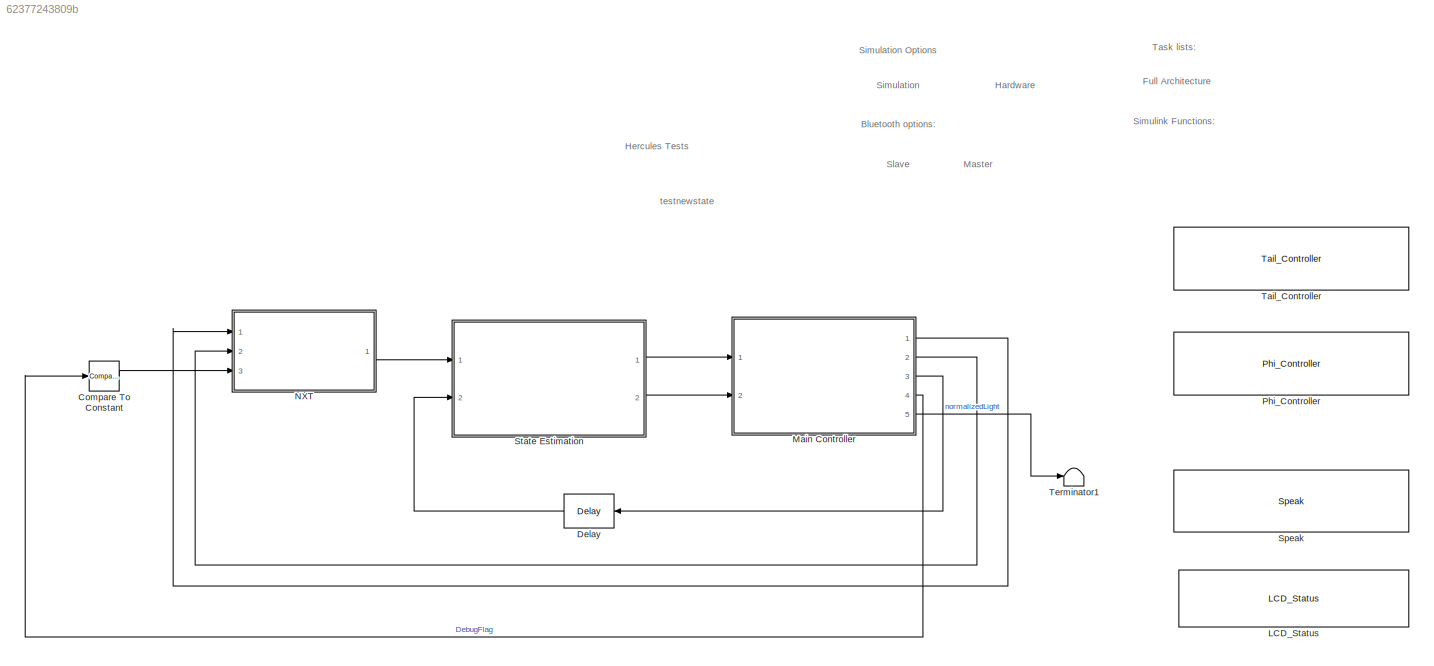
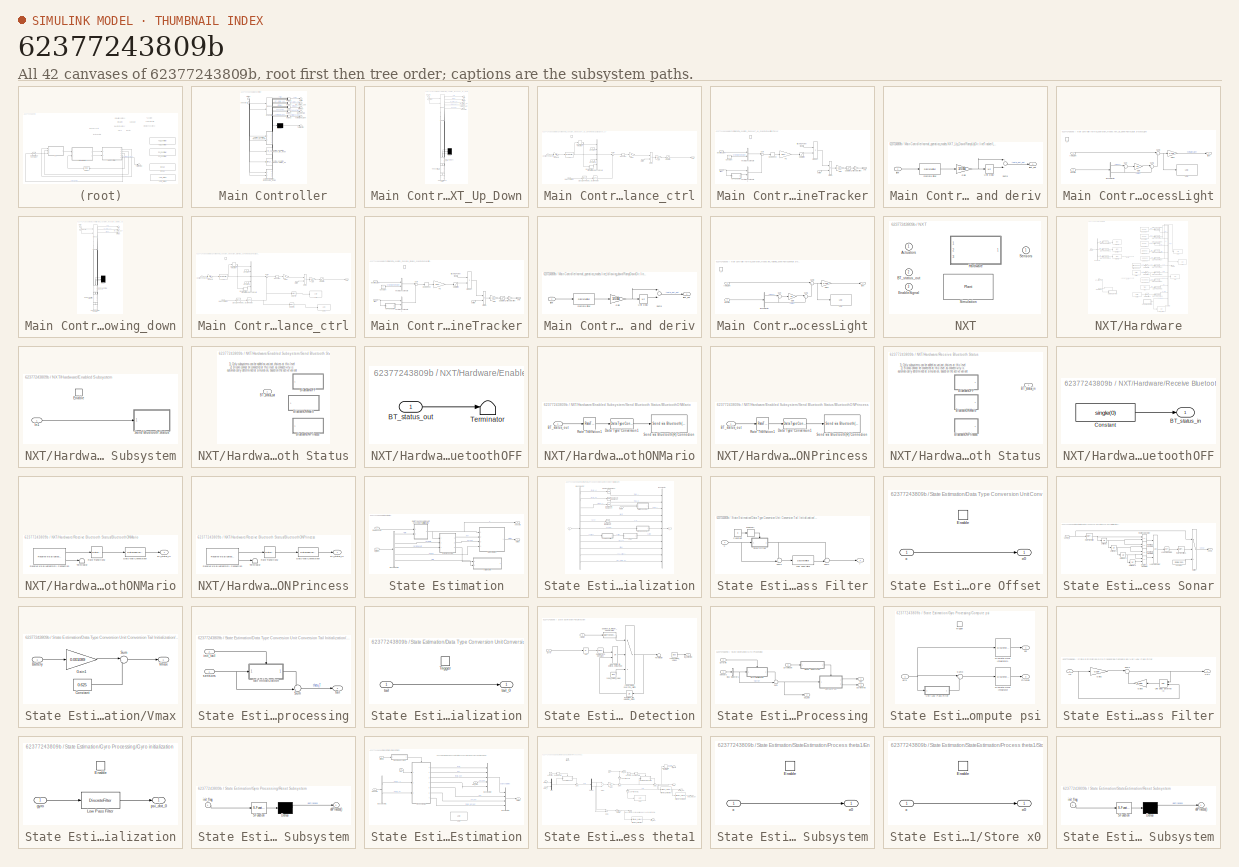
[diagram: thumbnail index - all 42 canvases of the model, root first then tree order]
MODEL slx_62377243809b
KIND model
BLOCK [Reference] Compare To Constant  REF=simulink/Logic and Bit
Operations/Compare
To Constant
  OutDataTypeStr = boolean
  Ports = [1, 1]
  SourceBlock = simulink/Logic and Bit\nOperations/Compare\nTo Constant
  SourceType = Compare To Constant
  ZeroCross = on
  const = 302
  relop = >=
BLOCK [Delay] Delay
  DelayLength = 1
  InputPortMap = u0
  Ports = [1, 1]
BLOCK [Reference] LCD_Status  REF=NXTFcns/LCD_Status
  Ports = [0, 0, 0, 1]
  SourceBlock = NXTFcns/LCD_Status
  SourceType = SubSystem
BLOCK [SubSystem] Main Controller
  ErrorFcn = Stateflow.Translate.translate
  PermitHierarchicalResolution = ExplicitOnly
  Ports = [2, 5]
  RequestExecContextInheritance = off
  SFBlockType = Chart
  TreatAsAtomicUnit = on
BLOCK [Demux] Main Controller/ Demux 
  Outputs = 1
  Ports = [1, 1]
BLOCK [Merge] Main Controller/ Merge 
  Inputs = 5
  Ports = [5, 1]
BLOCK [Merge] Main Controller/ Merge 1
  Inputs = 5
  Ports = [5, 1]
BLOCK [Merge] Main Controller/ Merge 2
  Inputs = 3
  Ports = [3, 1]
BLOCK [Merge] Main Controller/ Merge 3
  Ports = [2, 1]
BLOCK [Merge] Main Controller/ Merge 4
  Ports = [2, 1]
BLOCK [S-Function] Main Controller/ SFunction 
  EnableBusSupport = on
  FunctionName = sf_sfun
  Parameters = Init_Bus0,TRACK_MODE_LIST,balancerStates_Bus0
  PortCounts = [2 6]
  Ports = [2, 6]
  Tag = Stateflow S-Function et_robocon_emer 5
BLOCK [Terminator] Main Controller/ Terminator 
BLOCK [Outport] Main Controller/BT_status_out
  IconDisplay = Port number
  Port = 2
BLOCK [Outport] Main Controller/DebugFlag
  IconDisplay = Port number
  Port = 4
BLOCK [Outport] Main Controller/PWM
  IconDisplay = Port number
BLOCK [Outport] Main Controller/initFlags
  IconDisplay = Port number
  Port = 3
BLOCK [SubSystem] Main Controller/normal_operation_modes.NXT_Up_Down
  AncestorBlock = light_sensor_calibration_algorithm_atomic_sub_chart_library/light_calibration_up
  CopyFcn = set_param(gcbh, 'DSMNames', '', 'DSMValues', '', 'CopyFcn', '')
  DSMNames = current_task_operation_status,lightCalib
  DSMValues = current_mode_status,lightCalib
  ErrorFcn = Stateflow.Translate.translate
  PermitHierarchicalResolution = ExplicitOnly
  Ports = [2, 5]
  RequestExecContextInheritance = off
  SFBlockType = Chart
  TreatAsAtomicUnit = on
BLOCK [Demux] Main Controller/normal_operation_modes.NXT_Up_Down/ Demux 
  Outputs = 3
  Ports = [1, 3]
BLOCK [S-Function] Main Controller/normal_operation_modes.NXT_Up_Down/ SFunction 
  EnableBusSupport = off
  FunctionName = sf_sfun
  Parameters = balancerStates_Bus0
  PortCounts = [5 15]
  Ports = [5, 15]
  Tag = Stateflow S-Function et_robocon_emer 6
BLOCK [Outport] Main Controller/normal_operation_modes.NXT_Up_Down/BT_status_out
  IconDisplay = Port number
  Port = 3
BLOCK [Outport] Main Controller/normal_operation_modes.NXT_Up_Down/DebugFlag
  IconDisplay = Port number
  Port = 5
BLOCK [Outport] Main Controller/normal_operation_modes.NXT_Up_Down/PWM
  IconDisplay = Port number
BLOCK [SubSystem] Main Controller/normal_operation_modes.NXT_Up_Down/RampUpDir.balance_ctrl
  Ports = [3, 1, 0, 1]
  PreDeleteFcn = Stateflow.SLINSF.SimulinkMan.removePreDeleteFcn
  RequestExecContextInheritance = off
  UndoDeleteFcn = Stateflow.SLINSF.SimulinkMan.restorePreDeleteFcn
BLOCK [BusToVector] Main Controller/normal_operation_modes.NXT_Up_Down/RampUpDir.balance_ctrl/Bus to Vector
BLOCK [Constant] Main Controller/normal_operation_modes.NXT_Up_Down/RampUpDir.balance_ctrl/Constant
  OutDataTypeStr = single
  Value = 0
BLOCK [Constant] Main Controller/normal_operation_modes.NXT_Up_Down/RampUpDir.balance_ctrl/Constant1
  OutDataTypeStr = single
  Value = 0
BLOCK [DiscreteIntegrator] Main Controller/normal_operation_modes.NXT_Up_Down/RampUpDir.balance_ctrl/Discrete-Time Integrator
  Ports = [1, 1]
  SampleTime = -1
BLOCK [DiscreteIntegrator] Main Controller/normal_operation_modes.NXT_Up_Down/RampUpDir.balance_ctrl/Discrete-Time Integrator1
  Ports = [1, 1]
  SampleTime = -1
BLOCK [Product] Main Controller/normal_operation_modes.NXT_Up_Down/RampUpDir.balance_ctrl/Divide
  InputSameDT = off
  Inputs = */
  OutDataTypeStr = Inherit: Inherit via internal rule
  Ports = [2, 1]
  RndMeth = Floor
  SaturateOnIntegerOverflow = off
BLOCK [Gain] Main Controller/normal_operation_modes.NXT_Up_Down/RampUpDir.balance_ctrl/Gain
  Gain = 100
  OutDataTypeStr = Inherit: Inherit via internal rule
  ParamDataTypeStr = Inherit: Inherit via internal rule
  SaturateOnIntegerOverflow = off
BLOCK [Gain] Main Controller/normal_operation_modes.NXT_Up_Down/RampUpDir.balance_ctrl/Gain1
  Gain = K
  Multiplication = Matrix(K*u)
  OutDataTypeStr = Inherit: Inherit via internal rule
  ParamDataTypeStr = Inherit: Inherit via internal rule
  SaturateOnIntegerOverflow = off
BLOCK [DiscreteFilter] Main Controller/normal_operation_modes.NXT_Up_Down/RampUpDir.balance_ctrl/LPF
  Denominator = [1 -0.85]
  InputPortMap = u0
  Numerator = [0.15]
  Ports = [1, 1]
BLOCK [Reshape] Main Controller/normal_operation_modes.NXT_Up_Down/RampUpDir.balance_ctrl/Reshape
  OutputDimensionality = Column vector (2-D)
  Ports = [1, 1]
BLOCK [Saturate] Main Controller/normal_operation_modes.NXT_Up_Down/RampUpDir.balance_ctrl/Saturation
  InputPortMap = u0
  LowerLimit = -100
  OutDataTypeStr = single
  Ports = [1, 1]
  UpperLimit = 100
BLOCK [SignalConversion] Main Controller/normal_operation_modes.NXT_Up_Down/RampUpDir.balance_ctrl/Signal Conversion1
  ConversionOutput = Virtual bus
BLOCK [Sum] Main Controller/normal_operation_modes.NXT_Up_Down/RampUpDir.balance_ctrl/Sum1
  IconShape = round
  InputSameDT = off
  Inputs = |+-
  OutDataTypeStr = Inherit: Inherit via internal rule
  Ports = [2, 1]
  SaturateOnIntegerOverflow = off
BLOCK [Concatenate] Main Controller/normal_operation_modes.NXT_Up_Down/RampUpDir.balance_ctrl/Vector Concatenate
  NumInputs = 5
  Ports = [5, 1]
BLOCK [Inport] Main Controller/normal_operation_modes.NXT_Up_Down/RampUpDir.balance_ctrl/balancerStates
  IconDisplay = Port number
  OutDataTypeStr = Bus: Balancer_States_Bus
  PortDimensions = 1
  SamplingMode = Sample based
  SignalType = real
  VarSizeSig = No
BLOCK [Inport] Main Controller/normal_operation_modes.NXT_Up_Down/RampUpDir.balance_ctrl/battery
  IconDisplay = Port number
  OutDataTypeStr = double
  Port = 3
  PortDimensions = 1
  SamplingMode = Sample based
  SignalType = real
  VarSizeSig = No
BLOCK [Outport] Main Controller/normal_operation_modes.NXT_Up_Down/RampUpDir.balance_ctrl/cmd
  IconDisplay = Port number
  InitialOutput = 0
  OutDataTypeStr = single
  PortDimensions = 1
  SamplingMode = Sample based
  SignalType = real
  VarSizeSig = No
BLOCK [Inport] Main Controller/normal_operation_modes.NXT_Up_Down/RampUpDir.balance_ctrl/desired_velocity
  BusOutputAsStruct = on
  IconDisplay = Port number
  OutDataTypeStr = single
  Port = 2
  PortDimensions = 1
  SamplingMode = Sample based
  SignalType = real
  VarSizeSig = No
BLOCK [TriggerPort] Main Controller/normal_operation_modes.NXT_Up_Down/RampUpDir.balance_ctrl/f
  CopyFcn = Stateflow.SLINSF.SimulinkMan.removeBlockPreDeleteFcn
  Ports = []
  PreDeleteFcn = Stateflow.SLINSF.SimulinkMan.unsafePredeleteFcn
  StatesWhenEnabling = held
  TriggerType = function-call
BLOCK [Gain] Main Controller/normal_operation_modes.NXT_Up_Down/RampUpDir.balance_ctrl/m//s --> rad//s
  Gain = 1/R
  OutDataTypeStr = Inherit: Inherit via internal rule
  ParamDataTypeStr = Inherit: Inherit via internal rule
  SaturateOnIntegerOverflow = off
BLOCK [SubSystem] Main Controller/normal_operation_modes.NXT_Up_Down/RampUpDir.lineTracker
  Ports = [4, 1, 0, 1]
  PreDeleteFcn = Stateflow.SLINSF.SimulinkMan.removePreDeleteFcn
  RequestExecContextInheritance = off
  UndoDeleteFcn = Stateflow.SLINSF.SimulinkMan.restorePreDeleteFcn
BLOCK [Constant] Main Controller/normal_operation_modes.NXT_Up_Down/RampUpDir.lineTracker/Constant
  OutDataTypeStr = single
  Value = 0
BLOCK [DeadZone] Main Controller/normal_operation_modes.NXT_Up_Down/RampUpDir.lineTracker/Dead Zone
  LowerValue = -0.02
  UpperValue = 0.02
BLOCK [Product] Main Controller/normal_operation_modes.NXT_Up_Down/RampUpDir.lineTracker/Divide
  InputSameDT = off
  Inputs = */
  OutDataTypeStr = Inherit: Inherit via internal rule
  Ports = [2, 1]
  RndMeth = Floor
  SaturateOnIntegerOverflow = off
BLOCK [Gain] Main Controller/normal_operation_modes.NXT_Up_Down/RampUpDir.lineTracker/Gain
  Gain = 100
  OutDataTypeStr = Inherit: Inherit via internal rule
  ParamDataTypeStr = Inherit: Inherit via internal rule
  SaturateOnIntegerOverflow = off
BLOCK [SubSystem] Main Controller/normal_operation_modes.NXT_Up_Down/RampUpDir.lineTracker/LPF and deriv
  Ports = [1, 1]
  RequestExecContextInheritance = off
BLOCK [DiscreteFilter] Main Controller/normal_operation_modes.NXT_Up_Down/RampUpDir.lineTracker/LPF and deriv/Discrete Filter
  Denominator = [1 -0.95]
  InputPortMap = u0
  Numerator = [0.05]
  Ports = [1, 1]
BLOCK [Gain] Main Controller/normal_operation_modes.NXT_Up_Down/RampUpDir.lineTracker/LPF and deriv/Gain
  Gain = 1/0.004
  OutDataTypeStr = Inherit: Inherit via internal rule
  ParamDataTypeStr = Inherit: Inherit via internal rule
  SaturateOnIntegerOverflow = off
BLOCK [Sum] Main Controller/normal_operation_modes.NXT_Up_Down/RampUpDir.lineTracker/LPF and deriv/Sum3
  InputSameDT = off
  Inputs = +-
  OutDataTypeStr = Inherit: Inherit via internal rule
  Ports = [2, 1]
  SaturateOnIntegerOverflow = off
BLOCK [UnitDelay] Main Controller/normal_operation_modes.NXT_Up_Down/RampUpDir.lineTracker/LPF and deriv/Unit Delay
  InputProcessing = Elements as channels (sample based)
  SampleTime = -1
BLOCK [Inport] Main Controller/normal_operation_modes.NXT_Up_Down/RampUpDir.lineTracker/LPF and deriv/light
  IconDisplay = Port number
BLOCK [Outport] Main Controller/normal_operation_modes.NXT_Up_Down/RampUpDir.lineTracker/LPF and deriv/light_dot
  IconDisplay = Port number
BLOCK [Gain] Main Controller/normal_operation_modes.NXT_Up_Down/RampUpDir.lineTracker/PD
  Gain = [3.3  0.04]/2
  Multiplication = Matrix(K*u)
  OutDataTypeStr = Inherit: Inherit via internal rule
  ParamDataTypeStr = Inherit: Inherit via internal rule
  SaturateOnIntegerOverflow = off
BLOCK [Product] Main Controller/normal_operation_modes.NXT_Up_Down/RampUpDir.lineTracker/Product
  InputSameDT = off
  OutDataTypeStr = Inherit: Inherit via internal rule
  Ports = [2, 1]
  RndMeth = Floor
  SaturateOnIntegerOverflow = off
BLOCK [Saturate] Main Controller/normal_operation_modes.NXT_Up_Down/RampUpDir.lineTracker/Saturation
  InputPortMap = u0
  LowerLimit = -6
  Ports = [1, 1]
  UpperLimit = 6
BLOCK [Saturate] Main Controller/normal_operation_modes.NXT_Up_Down/RampUpDir.lineTracker/Saturation1
  InputPortMap = u0
  LowerLimit = -100
  OutDataTypeStr = single
  Ports = [1, 1]
  UpperLimit = 100
BLOCK [Sum] Main Controller/normal_operation_modes.NXT_Up_Down/RampUpDir.lineTracker/Sum
  IconShape = round
  InputSameDT = off
  Inputs = |+-
  OutDataTypeStr = Inherit: Inherit via internal rule
  Ports = [2, 1]
  SaturateOnIntegerOverflow = off
BLOCK [Concatenate] Main Controller/normal_operation_modes.NXT_Up_Down/RampUpDir.lineTracker/Vector Concatenate
  Ports = [2, 1]
BLOCK [Concatenate] Main Controller/normal_operation_modes.NXT_Up_Down/RampUpDir.lineTracker/Vector Concatenate1
  Ports = [2, 1]
BLOCK [Inport] Main Controller/normal_operation_modes.NXT_Up_Down/RampUpDir.lineTracker/battery
  IconDisplay = Port number
  OutDataTypeStr = double
  Port = 4
  PortDimensions = 1
  SamplingMode = Sample based
  SignalType = real
  VarSizeSig = No
BLOCK [Outport] Main Controller/normal_operation_modes.NXT_Up_Down/RampUpDir.lineTracker/cmd
  IconDisplay = Port number
  OutDataTypeStr = single
  PortDimensions = 1
  SamplingMode = Sample based
  SignalType = real
  VarSizeSig = No
BLOCK [Inport] Main Controller/normal_operation_modes.NXT_Up_Down/RampUpDir.lineTracker/desiredLight
  IconDisplay = Port number
  OutDataTypeStr = single
  PortDimensions = 1
  SignalType = real
  VarSizeSig = No
BLOCK [TriggerPort] Main Controller/normal_operation_modes.NXT_Up_Down/RampUpDir.lineTracker/f
  CopyFcn = Stateflow.SLINSF.SimulinkMan.removeBlockPreDeleteFcn
  Ports = []
  PreDeleteFcn = Stateflow.SLINSF.SimulinkMan.unsafePredeleteFcn
  StatesWhenEnabling = held
  TriggerType = function-call
BLOCK [Inport] Main Controller/normal_operation_modes.NXT_Up_Down/RampUpDir.lineTracker/light
  IconDisplay = Port number
  OutDataTypeStr = single
  Port = 2
  PortDimensions = 1
  SignalType = real
  VarSizeSig = No
BLOCK [Gain] Main Controller/normal_operation_modes.NXT_Up_Down/RampUpDir.lineTracker/switch side of line
  Gain = -1
  OutDataTypeStr = Inherit: Inherit via internal rule
  ParamDataTypeStr = Inherit: Inherit via internal rule
  SaturateOnIntegerOverflow = off
BLOCK [Inport] Main Controller/normal_operation_modes.NXT_Up_Down/RampUpDir.lineTracker/trackingPower
  IconDisplay = Port number
  OutDataTypeStr = single
  Port = 3
  PortDimensions = 1
  SignalType = real
  VarSizeSig = No
BLOCK [SubSystem] Main Controller/normal_operation_modes.NXT_Up_Down/RampUpDir.processLight
  Ports = [2, 1, 0, 1]
  PreDeleteFcn = Stateflow.SLINSF.SimulinkMan.removePreDeleteFcn
  RequestExecContextInheritance = off
  UndoDeleteFcn = Stateflow.SLINSF.SimulinkMan.restorePreDeleteFcn
BLOCK [BusSelector] Main Controller/normal_operation_modes.NXT_Up_Down/RampUpDir.processLight/Bus Selector
  OutputSignals = black,white
  Ports = [1, 2]
BLOCK [Gain] Main Controller/normal_operation_modes.NXT_Up_Down/RampUpDir.processLight/Gain
  Gain = 0.3
  OutDataTypeStr = Inherit: Inherit via internal rule
  ParamDataTypeStr = Inherit: Inherit via internal rule
  SaturateOnIntegerOverflow = off
BLOCK [Gain] Main Controller/normal_operation_modes.NXT_Up_Down/RampUpDir.processLight/Gain1
  Gain = 1/100
  OutDataTypeStr = Inherit: Inherit via internal rule
  ParamDataTypeStr = Inherit: Inherit via internal rule
  SaturateOnIntegerOverflow = off
BLOCK [Reference] Main Controller/normal_operation_modes.NXT_Up_Down/RampUpDir.processLight/LCD  REF=legonxtlib/LCD
  Ports = [1]
  SourceBlock = legonxtlib/LCD
  SourceType = LEGO MINDSTORMS NXT LCD
  blockPlatform = LegoMindstormsNXT
  slcdFormat = Decimal
  slcdLine = 5
  slcdStr = NLight
BLOCK [Sum] Main Controller/normal_operation_modes.NXT_Up_Down/RampUpDir.processLight/Sum
  IconShape = round
  InputSameDT = off
  Inputs = |+-
  OutDataTypeStr = Inherit: Inherit via internal rule
  Ports = [2, 1]
  SaturateOnIntegerOverflow = off
BLOCK [Sum] Main Controller/normal_operation_modes.NXT_Up_Down/RampUpDir.processLight/Sum1
  IconShape = round
  InputSameDT = off
  Inputs = |++
  OutDataTypeStr = Inherit: Inherit via internal rule
  Ports = [2, 1]
  SaturateOnIntegerOverflow = off
BLOCK [Sum] Main Controller/normal_operation_modes.NXT_Up_Down/RampUpDir.processLight/Sum2
  IconShape = round
  InputSameDT = off
  Inputs = |+-
  OutDataTypeStr = Inherit: Inherit via internal rule
  Ports = [2, 1]
  SaturateOnIntegerOverflow = off
BLOCK [TriggerPort] Main Controller/normal_operation_modes.NXT_Up_Down/RampUpDir.processLight/f
  CopyFcn = Stateflow.SLINSF.SimulinkMan.removeBlockPreDeleteFcn
  Ports = []
  PreDeleteFcn = Stateflow.SLINSF.SimulinkMan.unsafePredeleteFcn
  StatesWhenEnabling = held
  TriggerType = function-call
BLOCK [Outport] Main Controller/normal_operation_modes.NXT_Up_Down/RampUpDir.processLight/light
  IconDisplay = Port number
BLOCK [Inport] Main Controller/normal_operation_modes.NXT_Up_Down/RampUpDir.processLight/lightCalib
  IconDisplay = Port number
  OutDataTypeStr = Bus: Light_Bus
  Port = 2
  PortDimensions = 1
  SignalType = real
  VarSizeSig = No
BLOCK [Inport] Main Controller/normal_operation_modes.NXT_Up_Down/RampUpDir.processLight/rawLight
  IconDisplay = Port number
  OutDataTypeStr = single
  PortDimensions = 1
  SignalType = real
  VarSizeSig = No
BLOCK [Outport] Main Controller/normal_operation_modes.NXT_Up_Down/initFlags
  IconDisplay = Port number
  Port = 2
BLOCK [Outport] Main Controller/normal_operation_modes.NXT_Up_Down/normalizedLight
  IconDisplay = Port number
  Port = 4
BLOCK [Inport] Main Controller/normal_operation_modes.NXT_Up_Down/sensors
  IconDisplay = Port number
BLOCK [Inport] Main Controller/normal_operation_modes.NXT_Up_Down/states
  IconDisplay = Port number
  Port = 2
BLOCK [Reference] Main Controller/normal_operation_modes.gyro_calibration_mode  REF=gyro_calibration_algorithm_atomic_sub_chart_library/gyro_calibration_mode  (lib defined in slx_2f3fbd4523bb)
  DSMNames = current_task_operation_status
  DSMValues = current_mode_status
  FunctionWithSeparateData = off
  GeneratePreprocessorConditionals = off
  Ports = [1, 2]
  ShowPortLabels = FromPortIcon
  SourceBlock = gyro_calibration_algorithm_atomic_sub_chart_library/gyro_calibration_mode
  SystemSampleTime = -1
BLOCK [Reference] Main Controller/normal_operation_modes.light_calibration_up  REF=light_sensor_calibration_algorithm_atomic_sub_chart_library/light_calibration_up  (lib defined in slx_e9581249ee71)
  DSMNames = current_task_operation_status,lightCalib
  DSMValues = current_mode_status,lightCalib
  FunctionWithSeparateData = off
  GeneratePreprocessorConditionals = off
  Ports = [1, 2]
  ShowPortLabels = FromPortIcon
  SourceBlock = light_sensor_calibration_algorithm_atomic_sub_chart_library/light_calibration_up
  SystemSampleTime = -1
BLOCK [SubSystem] Main Controller/normal_operation_modes.line_following_down
  CopyFcn = set_param(gcbh, 'DSMNames', '', 'DSMValues', '', 'CopyFcn', '')
  DSMNames = current_mode_status,lightCalib
  DSMValues = current_mode_status,lightCalib
  ErrorFcn = Stateflow.Translate.translate
  PermitHierarchicalResolution = ExplicitOnly
  Ports = [2, 3]
  RequestExecContextInheritance = off
  SFBlockType = Chart
  TreatAsAtomicUnit = on
BLOCK [Demux] Main Controller/normal_operation_modes.line_following_down/ Demux 
  Outputs = 3
  Ports = [1, 3]
BLOCK [S-Function] Main Controller/normal_operation_modes.line_following_down/ SFunction 
  EnableBusSupport = off
  FunctionName = sf_sfun
  PortCounts = [5 13]
  Ports = [5, 13]
  Tag = Stateflow S-Function et_robocon_emer 2
BLOCK [Outport] Main Controller/normal_operation_modes.line_following_down/BT_status_out
  IconDisplay = Port number
  Port = 2
BLOCK [Outport] Main Controller/normal_operation_modes.line_following_down/PWM
  IconDisplay = Port number
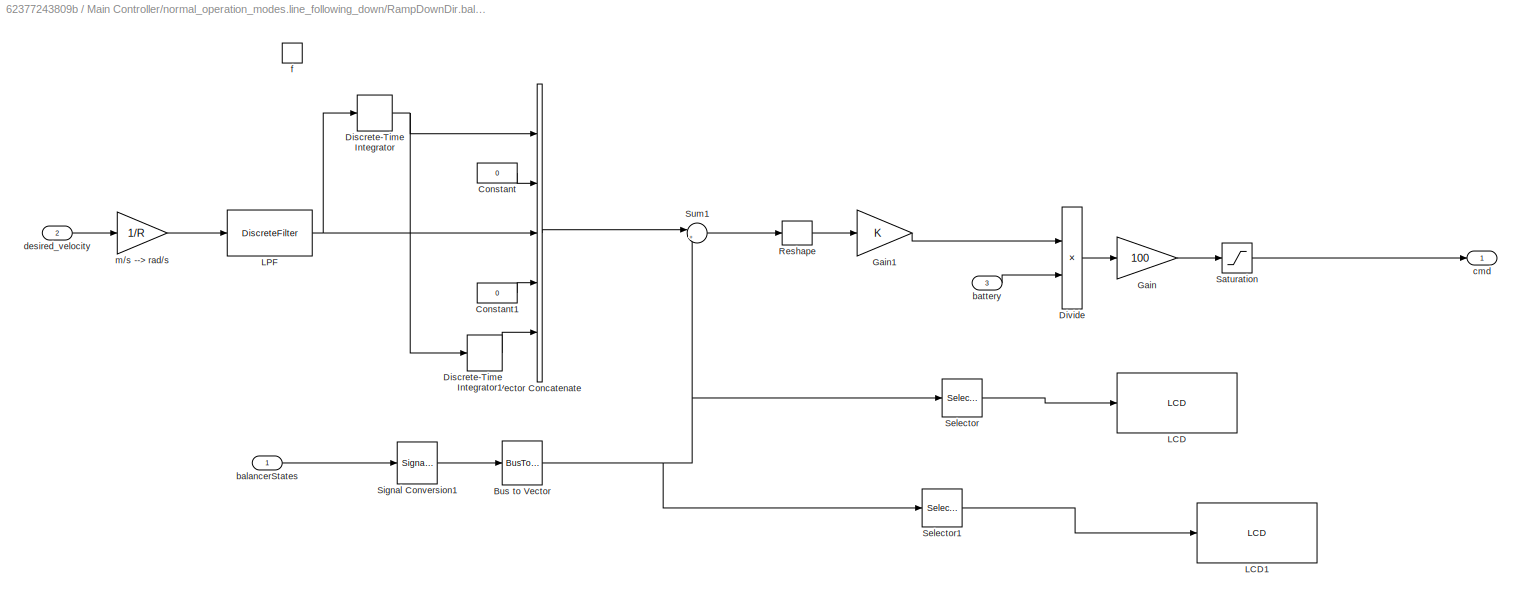
BLOCK [SubSystem] Main Controller/normal_operation_modes.line_following_down/RampDownDir.balance_ctrl
  Ports = [3, 1, 0, 1]
  PreDeleteFcn = Stateflow.SLINSF.SimulinkMan.removePreDeleteFcn
  RequestExecContextInheritance = off
  UndoDeleteFcn = Stateflow.SLINSF.SimulinkMan.restorePreDeleteFcn
BLOCK [BusToVector] Main Controller/normal_operation_modes.line_following_down/RampDownDir.balance_ctrl/Bus to Vector
BLOCK [Constant] Main Controller/normal_operation_modes.line_following_down/RampDownDir.balance_ctrl/Constant
  OutDataTypeStr = single
  Value = 0
BLOCK [Constant] Main Controller/normal_operation_modes.line_following_down/RampDownDir.balance_ctrl/Constant1
  OutDataTypeStr = single
  Value = 0
BLOCK [DiscreteIntegrator] Main Controller/normal_operation_modes.line_following_down/RampDownDir.balance_ctrl/Discrete-Time Integrator
  Ports = [1, 1]
  SampleTime = -1
BLOCK [DiscreteIntegrator] Main Controller/normal_operation_modes.line_following_down/RampDownDir.balance_ctrl/Discrete-Time Integrator1
  Ports = [1, 1]
  SampleTime = -1
BLOCK [Product] Main Controller/normal_operation_modes.line_following_down/RampDownDir.balance_ctrl/Divide
  InputSameDT = off
  Inputs = */
  OutDataTypeStr = Inherit: Inherit via internal rule
  Ports = [2, 1]
  RndMeth = Floor
  SaturateOnIntegerOverflow = off
BLOCK [Gain] Main Controller/normal_operation_modes.line_following_down/RampDownDir.balance_ctrl/Gain
  Gain = 100
  OutDataTypeStr = Inherit: Inherit via internal rule
  ParamDataTypeStr = Inherit: Inherit via internal rule
  SaturateOnIntegerOverflow = off
BLOCK [Gain] Main Controller/normal_operation_modes.line_following_down/RampDownDir.balance_ctrl/Gain1
  Gain = K
  Multiplication = Matrix(K*u)
  OutDataTypeStr = Inherit: Inherit via internal rule
  ParamDataTypeStr = Inherit: Inherit via internal rule
  SaturateOnIntegerOverflow = off
BLOCK [Reference] Main Controller/normal_operation_modes.line_following_down/RampDownDir.balance_ctrl/LCD  REF=legonxtlib/LCD
  Ports = [1]
  SourceBlock = legonxtlib/LCD
  SourceType = LEGO MINDSTORMS NXT LCD
  blockPlatform = LegoMindstormsNXT
  slcdFormat = Decimal
  slcdLine = 5
  slcdStr = th=
BLOCK [Reference] Main Controller/normal_operation_modes.line_following_down/RampDownDir.balance_ctrl/LCD1  REF=legonxtlib/LCD
  Ports = [1]
  SourceBlock = legonxtlib/LCD
  SourceType = LEGO MINDSTORMS NXT LCD
  blockPlatform = LegoMindstormsNXT
  slcdFormat = Decimal
  slcdLine = 6
  slcdStr = psi=
BLOCK [DiscreteFilter] Main Controller/normal_operation_modes.line_following_down/RampDownDir.balance_ctrl/LPF
  Denominator = [1 -0.85]
  InputPortMap = u0
  Numerator = [0.15]
  Ports = [1, 1]
BLOCK [Reshape] Main Controller/normal_operation_modes.line_following_down/RampDownDir.balance_ctrl/Reshape
  OutputDimensionality = Column vector (2-D)
  Ports = [1, 1]
BLOCK [Saturate] Main Controller/normal_operation_modes.line_following_down/RampDownDir.balance_ctrl/Saturation
  InputPortMap = u0
  LowerLimit = -100
  OutDataTypeStr = single
  Ports = [1, 1]
  UpperLimit = 100
BLOCK [Selector] Main Controller/normal_operation_modes.line_following_down/RampDownDir.balance_ctrl/Selector
  Indices = [1]
  InputPortWidth = 5
  Ports = [1, 1]
BLOCK [Selector] Main Controller/normal_operation_modes.line_following_down/RampDownDir.balance_ctrl/Selector1
  Indices = [2]
  InputPortWidth = 5
  Ports = [1, 1]
BLOCK [SignalConversion] Main Controller/normal_operation_modes.line_following_down/RampDownDir.balance_ctrl/Signal Conversion1
  ConversionOutput = Virtual bus
BLOCK [Sum] Main Controller/normal_operation_modes.line_following_down/RampDownDir.balance_ctrl/Sum1
  IconShape = round
  InputSameDT = off
  Inputs = |+-
  OutDataTypeStr = Inherit: Inherit via internal rule
  Ports = [2, 1]
  SaturateOnIntegerOverflow = off
BLOCK [Concatenate] Main Controller/normal_operation_modes.line_following_down/RampDownDir.balance_ctrl/Vector Concatenate
  NumInputs = 5
  Ports = [5, 1]
BLOCK [Inport] Main Controller/normal_operation_modes.line_following_down/RampDownDir.balance_ctrl/balancerStates
  IconDisplay = Port number
  OutDataTypeStr = Bus: Balancer_States_Bus
  PortDimensions = 1
  SamplingMode = Sample based
  SignalType = real
  VarSizeSig = No
BLOCK [Inport] Main Controller/normal_operation_modes.line_following_down/RampDownDir.balance_ctrl/battery
  IconDisplay = Port number
  OutDataTypeStr = double
  Port = 3
  PortDimensions = 1
  SamplingMode = Sample based
  SignalType = real
  VarSizeSig = No
BLOCK [Outport] Main Controller/normal_operation_modes.line_following_down/RampDownDir.balance_ctrl/cmd
  IconDisplay = Port number
  InitialOutput = 0
  OutDataTypeStr = single
  PortDimensions = 1
  SamplingMode = Sample based
  SignalType = real
  VarSizeSig = No
BLOCK [Inport] Main Controller/normal_operation_modes.line_following_down/RampDownDir.balance_ctrl/desired_velocity
  BusOutputAsStruct = on
  IconDisplay = Port number
  OutDataTypeStr = single
  Port = 2
  PortDimensions = 1
  SamplingMode = Sample based
  SignalType = real
  VarSizeSig = No
BLOCK [TriggerPort] Main Controller/normal_operation_modes.line_following_down/RampDownDir.balance_ctrl/f
  CopyFcn = Stateflow.SLINSF.SimulinkMan.removeBlockPreDeleteFcn
  Ports = []
  PreDeleteFcn = Stateflow.SLINSF.SimulinkMan.unsafePredeleteFcn
  StatesWhenEnabling = held
  TriggerType = function-call
BLOCK [Gain] Main Controller/normal_operation_modes.line_following_down/RampDownDir.balance_ctrl/m//s --> rad//s
  Gain = 1/R
  OutDataTypeStr = Inherit: Inherit via internal rule
  ParamDataTypeStr = Inherit: Inherit via internal rule
  SaturateOnIntegerOverflow = off
BLOCK [SubSystem] Main Controller/normal_operation_modes.line_following_down/RampDownDir.lineTracker
  Ports = [4, 1, 0, 1]
  PreDeleteFcn = Stateflow.SLINSF.SimulinkMan.removePreDeleteFcn
  RequestExecContextInheritance = off
  UndoDeleteFcn = Stateflow.SLINSF.SimulinkMan.restorePreDeleteFcn
BLOCK [Constant] Main Controller/normal_operation_modes.line_following_down/RampDownDir.lineTracker/Constant
  OutDataTypeStr = single
  Value = 0
BLOCK [DeadZone] Main Controller/normal_operation_modes.line_following_down/RampDownDir.lineTracker/Dead Zone
  LowerValue = -0.02
  UpperValue = 0.02
BLOCK [Product] Main Controller/normal_operation_modes.line_following_down/RampDownDir.lineTracker/Divide
  InputSameDT = off
  Inputs = */
  OutDataTypeStr = Inherit: Inherit via internal rule
  Ports = [2, 1]
  RndMeth = Floor
  SaturateOnIntegerOverflow = off
BLOCK [Gain] Main Controller/normal_operation_modes.line_following_down/RampDownDir.lineTracker/Gain
  Gain = 100
  OutDataTypeStr = Inherit: Inherit via internal rule
  ParamDataTypeStr = Inherit: Inherit via internal rule
  SaturateOnIntegerOverflow = off
BLOCK [SubSystem] Main Controller/normal_operation_modes.line_following_down/RampDownDir.lineTracker/LPF and deriv
  Ports = [1, 1]
  RequestExecContextInheritance = off
BLOCK [DiscreteFilter] Main Controller/normal_operation_modes.line_following_down/RampDownDir.lineTracker/LPF and deriv/Discrete Filter
  Denominator = [1 -0.95]
  InputPortMap = u0
  Numerator = [0.05]
  Ports = [1, 1]
BLOCK [Gain] Main Controller/normal_operation_modes.line_following_down/RampDownDir.lineTracker/LPF and deriv/Gain
  Gain = 1/0.004
  OutDataTypeStr = Inherit: Inherit via internal rule
  ParamDataTypeStr = Inherit: Inherit via internal rule
  SaturateOnIntegerOverflow = off
BLOCK [Sum] Main Controller/normal_operation_modes.line_following_down/RampDownDir.lineTracker/LPF and deriv/Sum3
  InputSameDT = off
  Inputs = +-
  OutDataTypeStr = Inherit: Inherit via internal rule
  Ports = [2, 1]
  SaturateOnIntegerOverflow = off
BLOCK [UnitDelay] Main Controller/normal_operation_modes.line_following_down/RampDownDir.lineTracker/LPF and deriv/Unit Delay
  InputProcessing = Elements as channels (sample based)
  SampleTime = -1
BLOCK [Inport] Main Controller/normal_operation_modes.line_following_down/RampDownDir.lineTracker/LPF and deriv/light
  IconDisplay = Port number
BLOCK [Outport] Main Controller/normal_operation_modes.line_following_down/RampDownDir.lineTracker/LPF and deriv/light_dot
  IconDisplay = Port number
BLOCK [Gain] Main Controller/normal_operation_modes.line_following_down/RampDownDir.lineTracker/PD
  Gain = [4  0.02]/2
  Multiplication = Matrix(K*u)
  OutDataTypeStr = Inherit: Inherit via internal rule
  ParamDataTypeStr = Inherit: Inherit via internal rule
  SaturateOnIntegerOverflow = off
BLOCK [Product] Main Controller/normal_operation_modes.line_following_down/RampDownDir.lineTracker/Product
  InputSameDT = off
  OutDataTypeStr = Inherit: Inherit via internal rule
  Ports = [2, 1]
  RndMeth = Floor
  SaturateOnIntegerOverflow = off
BLOCK [Saturate] Main Controller/normal_operation_modes.line_following_down/RampDownDir.lineTracker/Saturation
  InputPortMap = u0
  LowerLimit = -6
  Ports = [1, 1]
  UpperLimit = 6
BLOCK [Saturate] Main Controller/normal_operation_modes.line_following_down/RampDownDir.lineTracker/Saturation1
  InputPortMap = u0
  LowerLimit = -100
  OutDataTypeStr = single
  Ports = [1, 1]
  UpperLimit = 100
BLOCK [Sum] Main Controller/normal_operation_modes.line_following_down/RampDownDir.lineTracker/Sum
  IconShape = round
  InputSameDT = off
  Inputs = |+-
  OutDataTypeStr = Inherit: Inherit via internal rule
  Ports = [2, 1]
  SaturateOnIntegerOverflow = off
BLOCK [Concatenate] Main Controller/normal_operation_modes.line_following_down/RampDownDir.lineTracker/Vector Concatenate
  Ports = [2, 1]
BLOCK [Concatenate] Main Controller/normal_operation_modes.line_following_down/RampDownDir.lineTracker/Vector Concatenate1
  Ports = [2, 1]
BLOCK [Inport] Main Controller/normal_operation_modes.line_following_down/RampDownDir.lineTracker/battery
  IconDisplay = Port number
  OutDataTypeStr = double
  Port = 4
  PortDimensions = 1
  SamplingMode = Sample based
  SignalType = real
  VarSizeSig = No
BLOCK [Outport] Main Controller/normal_operation_modes.line_following_down/RampDownDir.lineTracker/cmd
  IconDisplay = Port number
  OutDataTypeStr = single
  PortDimensions = 1
  SamplingMode = Sample based
  SignalType = real
  VarSizeSig = No
BLOCK [Inport] Main Controller/normal_operation_modes.line_following_down/RampDownDir.lineTracker/desiredLight
  IconDisplay = Port number
  OutDataTypeStr = single
  PortDimensions = 1
  SignalType = real
  VarSizeSig = No
BLOCK [TriggerPort] Main Controller/normal_operation_modes.line_following_down/RampDownDir.lineTracker/f
  CopyFcn = Stateflow.SLINSF.SimulinkMan.removeBlockPreDeleteFcn
  Ports = []
  PreDeleteFcn = Stateflow.SLINSF.SimulinkMan.unsafePredeleteFcn
  StatesWhenEnabling = held
  TriggerType = function-call
BLOCK [Inport] Main Controller/normal_operation_modes.line_following_down/RampDownDir.lineTracker/light
  IconDisplay = Port number
  OutDataTypeStr = single
  Port = 2
  PortDimensions = 1
  SignalType = real
  VarSizeSig = No
BLOCK [Gain] Main Controller/normal_operation_modes.line_following_down/RampDownDir.lineTracker/switch side of line
  Gain = -1
  OutDataTypeStr = Inherit: Inherit via internal rule
  ParamDataTypeStr = Inherit: Inherit via internal rule
  SaturateOnIntegerOverflow = off
BLOCK [Inport] Main Controller/normal_operation_modes.line_following_down/RampDownDir.lineTracker/trackingPower
  IconDisplay = Port number
  OutDataTypeStr = single
  Port = 3
  PortDimensions = 1
  SignalType = real
  VarSizeSig = No
BLOCK [SubSystem] Main Controller/normal_operation_modes.line_following_down/RampDownDir.processLight
  Ports = [2, 1, 0, 1]
  PreDeleteFcn = Stateflow.SLINSF.SimulinkMan.removePreDeleteFcn
  RequestExecContextInheritance = off
  UndoDeleteFcn = Stateflow.SLINSF.SimulinkMan.restorePreDeleteFcn
BLOCK [BusSelector] Main Controller/normal_operation_modes.line_following_down/RampDownDir.processLight/Bus Selector
  OutputSignals = black,white
  Ports = [1, 2]
BLOCK [Gain] Main Controller/normal_operation_modes.line_following_down/RampDownDir.processLight/Gain
  Gain = 0.3
  OutDataTypeStr = Inherit: Inherit via internal rule
  ParamDataTypeStr = Inherit: Inherit via internal rule
  SaturateOnIntegerOverflow = off
BLOCK [Gain] Main Controller/normal_operation_modes.line_following_down/RampDownDir.processLight/Gain1
  Gain = 1/100
  OutDataTypeStr = Inherit: Inherit via internal rule
  ParamDataTypeStr = Inherit: Inherit via internal rule
  SaturateOnIntegerOverflow = off
BLOCK [Reference] Main Controller/normal_operation_modes.line_following_down/RampDownDir.processLight/LCD  REF=legonxtlib/LCD
  Ports = [1]
  SourceBlock = legonxtlib/LCD
  SourceType = LEGO MINDSTORMS NXT LCD
  blockPlatform = LegoMindstormsNXT
  slcdFormat = Decimal
  slcdLine = 5
  slcdStr = NLight
BLOCK [Sum] Main Controller/normal_operation_modes.line_following_down/RampDownDir.processLight/Sum
  IconShape = round
  InputSameDT = off
  Inputs = |+-
  OutDataTypeStr = Inherit: Inherit via internal rule
  Ports = [2, 1]
  SaturateOnIntegerOverflow = off
BLOCK [Sum] Main Controller/normal_operation_modes.line_following_down/RampDownDir.processLight/Sum1
  IconShape = round
  InputSameDT = off
  Inputs = |++
  OutDataTypeStr = Inherit: Inherit via internal rule
  Ports = [2, 1]
  SaturateOnIntegerOverflow = off
BLOCK [Sum] Main Controller/normal_operation_modes.line_following_down/RampDownDir.processLight/Sum2
  IconShape = round
  InputSameDT = off
  Inputs = |+-
  OutDataTypeStr = Inherit: Inherit via internal rule
  Ports = [2, 1]
  SaturateOnIntegerOverflow = off
BLOCK [TriggerPort] Main Controller/normal_operation_modes.line_following_down/RampDownDir.processLight/f
  CopyFcn = Stateflow.SLINSF.SimulinkMan.removeBlockPreDeleteFcn
  Ports = []
  PreDeleteFcn = Stateflow.SLINSF.SimulinkMan.unsafePredeleteFcn
  StatesWhenEnabling = held
  TriggerType = function-call
BLOCK [Outport] Main Controller/normal_operation_modes.line_following_down/RampDownDir.processLight/light
  IconDisplay = Port number
BLOCK [Inport] Main Controller/normal_operation_modes.line_following_down/RampDownDir.processLight/lightCalib
  IconDisplay = Port number
  OutDataTypeStr = Bus: Light_Bus
  Port = 2
  PortDimensions = 1
  SignalType = real
  VarSizeSig = No
BLOCK [Inport] Main Controller/normal_operation_modes.line_following_down/RampDownDir.processLight/rawLight
  IconDisplay = Port number
  OutDataTypeStr = single
  PortDimensions = 1
  SignalType = real
  VarSizeSig = No
BLOCK [Outport] Main Controller/normal_operation_modes.line_following_down/initFlags
  IconDisplay = Port number
  Port = 3
BLOCK [Inport] Main Controller/normal_operation_modes.line_following_down/sensors
  IconDisplay = Port number
  Port = 2
BLOCK [Inport] Main Controller/normal_operation_modes.line_following_down/states
  IconDisplay = Port number
BLOCK [Outport] Main Controller/normalizedLight
  IconDisplay = Port number
  Port = 5
BLOCK [Inport] Main Controller/sensors
  IconDisplay = Port number
  Port = 2
BLOCK [Inport] Main Controller/states
  IconDisplay = Port number
BLOCK [SubSystem] NXT
  Ports = [3, 1]
  RequestExecContextInheritance = off
  Variant = on
  VariantControl = Variant1
BLOCK [Inport] NXT/Actuators
  IconDisplay = Port number
BLOCK [Inport] NXT/BT_status_out
  IconDisplay = Port number
  Port = 2
BLOCK [Inport] NXT/EnableSignal
  IconDisplay = Port number
  Port = 3
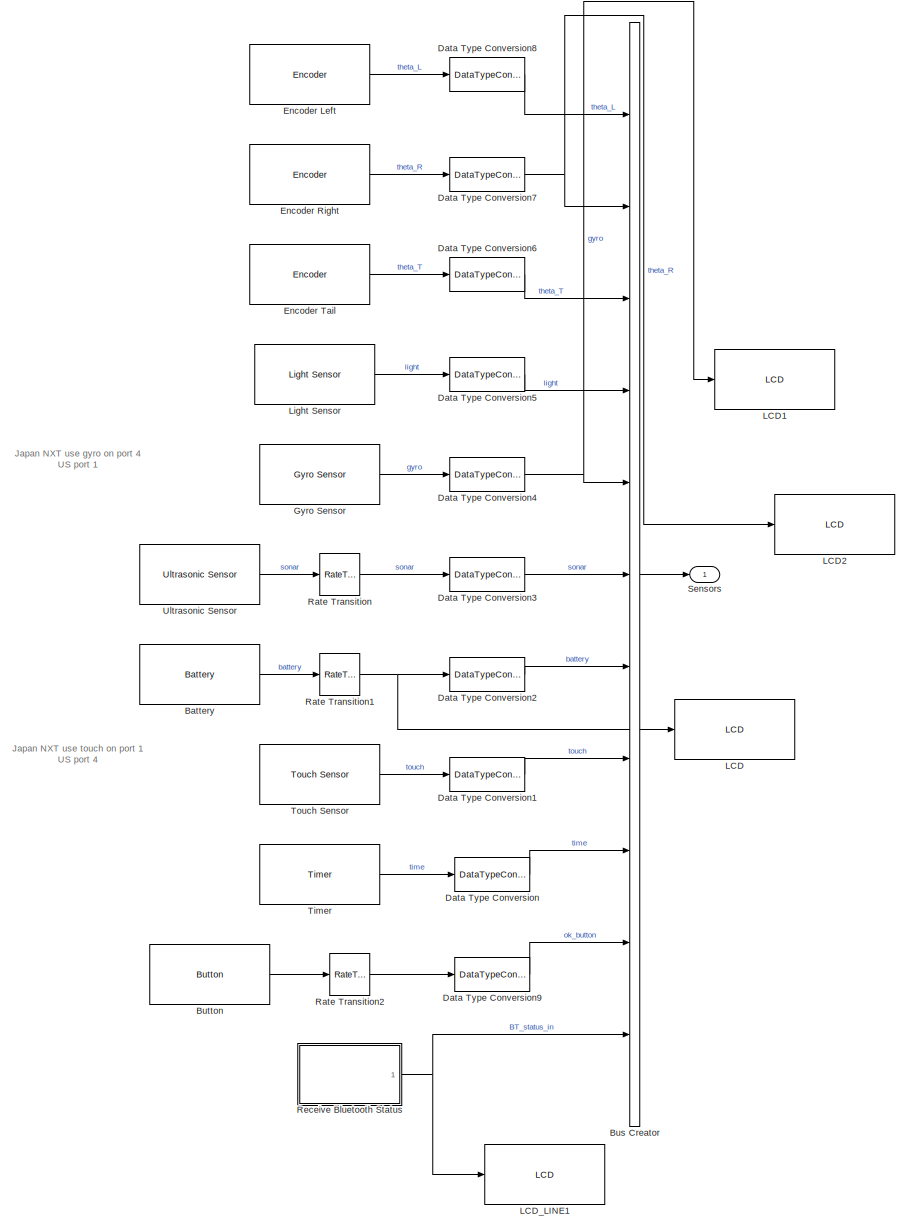
[diagram: NXT/Hardware - part 1/2, center side, full height]
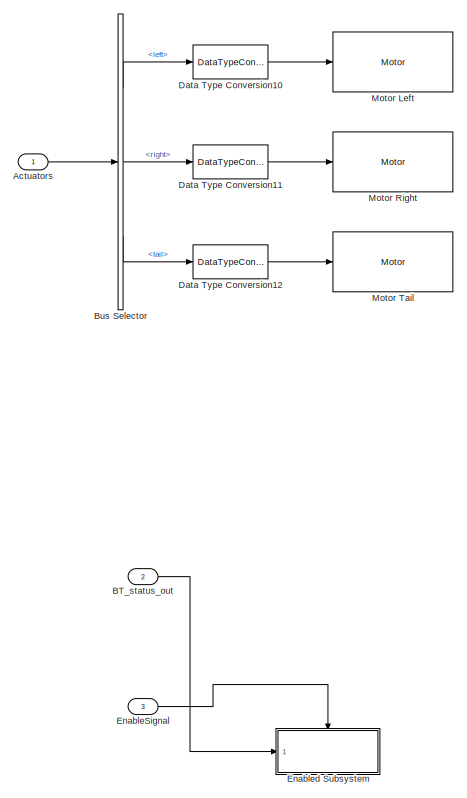
[diagram: NXT/Hardware - part 2/2, middle left region]
BLOCK [SubSystem] NXT/Hardware
  Ports = [3, 1]
  RequestExecContextInheritance = off
  VariantControl = HardwareVar
BLOCK [Inport] NXT/Hardware/Actuators
  IconDisplay = Port number
BLOCK [Inport] NXT/Hardware/BT_status_out
  IconDisplay = Port number
  Port = 2
BLOCK [Reference] NXT/Hardware/Battery  REF=legonxtlib/Battery
  Ports = [0, 1]
  SourceBlock = legonxtlib/Battery
  SourceType = LEGO MINDSTORMS NXT Battery
  blockPlatform = LegoMindstormsNXT
  sampleTime = .1
BLOCK [BusCreator] NXT/Hardware/Bus Creator
  DisplayOption = bar
  Inputs = 11
  Ports = [11, 1]
BLOCK [BusSelector] NXT/Hardware/Bus Selector
  OutputSignals = left,right,tail
  Ports = [1, 3]
BLOCK [Reference] NXT/Hardware/Button  REF=legonxtlib/Button
  Ports = [0, 1]
  SourceBlock = legonxtlib/Button
  SourceType = LEGO MINDSTORMS NXT Button
  blockPlatform = LegoMindstormsNXT
  buttonType = Middle orange
  sampleTime = 0.04
BLOCK [DataTypeConversion] NXT/Hardware/Data Type Conversion
  OutDataTypeStr = single
  RndMeth = Floor
  SaturateOnIntegerOverflow = off
BLOCK [DataTypeConversion] NXT/Hardware/Data Type Conversion1
  OutDataTypeStr = single
  RndMeth = Floor
  SaturateOnIntegerOverflow = off
BLOCK [DataTypeConversion] NXT/Hardware/Data Type Conversion10
  OutDataTypeStr = int8
  RndMeth = Floor
BLOCK [DataTypeConversion] NXT/Hardware/Data Type Conversion11
  OutDataTypeStr = int8
  RndMeth = Floor
BLOCK [DataTypeConversion] NXT/Hardware/Data Type Conversion12
  OutDataTypeStr = int8
  RndMeth = Floor
BLOCK [DataTypeConversion] NXT/Hardware/Data Type Conversion2
  OutDataTypeStr = single
  RndMeth = Floor
  SaturateOnIntegerOverflow = off
BLOCK [DataTypeConversion] NXT/Hardware/Data Type Conversion3
  OutDataTypeStr = single
  RndMeth = Floor
  SaturateOnIntegerOverflow = off
BLOCK [DataTypeConversion] NXT/Hardware/Data Type Conversion4
  OutDataTypeStr = single
  RndMeth = Floor
  SaturateOnIntegerOverflow = off
BLOCK [DataTypeConversion] NXT/Hardware/Data Type Conversion5
  OutDataTypeStr = single
  RndMeth = Floor
  SaturateOnIntegerOverflow = off
BLOCK [DataTypeConversion] NXT/Hardware/Data Type Conversion6
  OutDataTypeStr = single
  RndMeth = Floor
  SaturateOnIntegerOverflow = off
BLOCK [DataTypeConversion] NXT/Hardware/Data Type Conversion7
  OutDataTypeStr = single
  RndMeth = Floor
  SaturateOnIntegerOverflow = off
BLOCK [DataTypeConversion] NXT/Hardware/Data Type Conversion8
  OutDataTypeStr = single
  RndMeth = Floor
  SaturateOnIntegerOverflow = off
BLOCK [DataTypeConversion] NXT/Hardware/Data Type Conversion9
  OutDataTypeStr = single
  RndMeth = Floor
  SaturateOnIntegerOverflow = off
BLOCK [Inport] NXT/Hardware/EnableSignal
  IconDisplay = Port number
  Port = 3
BLOCK [SubSystem] NXT/Hardware/Enabled Subsystem
  Ports = [1, 0, 1]
  RequestExecContextInheritance = off
  TreatAsAtomicUnit = on
BLOCK [EnablePort] NXT/Hardware/Enabled Subsystem/Enable
  Ports = []
BLOCK [Inport] NXT/Hardware/Enabled Subsystem/In1
  IconDisplay = Port number
BLOCK [SubSystem] NXT/Hardware/Enabled Subsystem/Send Bluetooth Status
  OverrideUsingVariant = BluetoothOFF
  Ports = [1]
  RequestExecContextInheritance = off
  Variant = on
BLOCK [Inport] NXT/Hardware/Enabled Subsystem/Send Bluetooth Status/BT_status_out
  IconDisplay = Port number
BLOCK [SubSystem] NXT/Hardware/Enabled Subsystem/Send Bluetooth Status/BluetoothOFF
  Ports = [1]
  RequestExecContextInheritance = off
  VariantControl = BluetoothOFF
BLOCK [Inport] NXT/Hardware/Enabled Subsystem/Send Bluetooth Status/BluetoothOFF/BT_status_out
  IconDisplay = Port number
BLOCK [Terminator] NXT/Hardware/Enabled Subsystem/Send Bluetooth Status/BluetoothOFF/Terminator
BLOCK [SubSystem] NXT/Hardware/Enabled Subsystem/Send Bluetooth Status/BluetoothONMario
  Ports = [1]
  RequestExecContextInheritance = off
  VariantControl = BluetoothONMario
BLOCK [Inport] NXT/Hardware/Enabled Subsystem/Send Bluetooth Status/BluetoothONMario/BT_status_out
  IconDisplay = Port number
BLOCK [DataTypeConversion] NXT/Hardware/Enabled Subsystem/Send Bluetooth Status/BluetoothONMario/Data Type Conversion1
  OutDataTypeStr = uint8
  RndMeth = Floor
  SaturateOnIntegerOverflow = off
BLOCK [RateTransition] NXT/Hardware/Enabled Subsystem/Send Bluetooth Status/BluetoothONMario/Rate Transition1
  OutPortSampleTime = 1
BLOCK [Reference] NXT/Hardware/Enabled Subsystem/Send Bluetooth Status/BluetoothONMario/Send via Bluetooth(R) Connection  REF=legonxtlib/Send via Bluetooth(R) Connection
  Ports = [1]
  SourceBlock = legonxtlib/Send via Bluetooth(R) Connection
  SourceType = LEGO MINDSTORMS NXT Send via Bluetooth(R) Connection
  blockPlatform = LegoMindstormsNXT
  mailbox = 4
BLOCK [SubSystem] NXT/Hardware/Enabled Subsystem/Send Bluetooth Status/BluetoothONPrincess
  Ports = [1]
  RequestExecContextInheritance = off
  VariantControl = BluetoothONPrincess
BLOCK [Inport] NXT/Hardware/Enabled Subsystem/Send Bluetooth Status/BluetoothONPrincess/BT_status_out
  IconDisplay = Port number
BLOCK [DataTypeConversion] NXT/Hardware/Enabled Subsystem/Send Bluetooth Status/BluetoothONPrincess/Data Type Conversion1
  OutDataTypeStr = uint8
  RndMeth = Floor
  SaturateOnIntegerOverflow = off
BLOCK [RateTransition] NXT/Hardware/Enabled Subsystem/Send Bluetooth Status/BluetoothONPrincess/Rate Transition1
  OutPortSampleTime = 0.1
BLOCK [Reference] NXT/Hardware/Enabled Subsystem/Send Bluetooth Status/BluetoothONPrincess/Send via Bluetooth(R) Connection  REF=legonxtlib/Send via Bluetooth(R) Connection
  Ports = [1]
  SourceBlock = legonxtlib/Send via Bluetooth(R) Connection
  SourceType = LEGO MINDSTORMS NXT Send via Bluetooth(R) Connection
  blockPlatform = LegoMindstormsNXT
  mailbox = 3
BLOCK [Reference] NXT/Hardware/Encoder Left  REF=legonxtlib/Encoder
  Ports = [0, 1]
  SourceBlock = legonxtlib/Encoder
  SourceType = LEGO MINDSTORMS NXT Encoder
  blockPlatform = LegoMindstormsNXT
  opMode = No reset
  portNumber = C
  sampleTime = 0.004
BLOCK [Reference] NXT/Hardware/Encoder Right  REF=legonxtlib/Encoder
  Ports = [0, 1]
  SourceBlock = legonxtlib/Encoder
  SourceType = LEGO MINDSTORMS NXT Encoder
  blockPlatform = LegoMindstormsNXT
  opMode = No reset
  portNumber = B
  sampleTime = 0.004
BLOCK [Reference] NXT/Hardware/Encoder Tail  REF=legonxtlib/Encoder
  Ports = [0, 1]
  SourceBlock = legonxtlib/Encoder
  SourceType = LEGO MINDSTORMS NXT Encoder
  blockPlatform = LegoMindstormsNXT
  opMode = No reset
  portNumber = A
  sampleTime = 0.004
BLOCK [Reference] NXT/Hardware/Gyro Sensor  REF=legonxtlib/Gyro Sensor
  Ports = [0, 1]
  SourceBlock = legonxtlib/Gyro Sensor
  SourceType = LEGO MINDSTORMS NXT Gyro Sensor
  blockPlatform = LegoMindstormsNXT
  offset = 599
  outputMode = Raw A/D (0 - 1023)
  portNumber = 1
  sampleTime = 0.004
BLOCK [Reference] NXT/Hardware/LCD  REF=legonxtlib/LCD
  Ports = [1]
  SourceBlock = legonxtlib/LCD
  SourceType = LEGO MINDSTORMS NXT LCD
  blockPlatform = LegoMindstormsNXT
  slcdFormat = Decimal
  slcdLine = 3
  slcdStr = Batt:
BLOCK [Reference] NXT/Hardware/LCD1  REF=legonxtlib/LCD
  Commented = on
  Ports = [1]
  SourceBlock = legonxtlib/LCD
  SourceType = LEGO MINDSTORMS NXT LCD
  blockPlatform = LegoMindstormsNXT
  slcdFormat = Decimal
  slcdLine = 8
  slcdStr = GYRO:
BLOCK [Reference] NXT/Hardware/LCD2  REF=legonxtlib/LCD
  Commented = on
  Ports = [1]
  SourceBlock = legonxtlib/LCD
  SourceType = LEGO MINDSTORMS NXT LCD
  blockPlatform = LegoMindstormsNXT
  slcdFormat = Decimal
  slcdLine = 7
  slcdStr = RM:
BLOCK [Reference] NXT/Hardware/LCD_LINE1  REF=legonxtlib/LCD
  Ports = [1]
  SourceBlock = legonxtlib/LCD
  SourceType = LEGO MINDSTORMS NXT LCD
  blockPlatform = LegoMindstormsNXT
  slcdFormat = Decimal
  slcdLine = 2
  slcdStr = BTSTAT
BLOCK [Reference] NXT/Hardware/Light Sensor  REF=legonxtlib/Light Sensor
  Ports = [0, 1]
  SourceBlock = legonxtlib/Light Sensor
  SourceType = LEGO MINDSTORMS NXT Light Sensor
  blockPlatform = LegoMindstormsNXT
  lightOn = on
  outputMode = Raw A/D (1023 - 0)
  portNumber = 3
  sampleTime = 0.004
BLOCK [Reference] NXT/Hardware/Motor Left  REF=legonxtlib/Motor
  Ports = [1]
  SourceBlock = legonxtlib/Motor
  SourceType = LEGO MINDSTORMS NXT Motor
  blockPlatform = LegoMindstormsNXT
  sportNumber = C
  sstopAction = Brake
BLOCK [Reference] NXT/Hardware/Motor Right  REF=legonxtlib/Motor
  Ports = [1]
  SourceBlock = legonxtlib/Motor
  SourceType = LEGO MINDSTORMS NXT Motor
  blockPlatform = LegoMindstormsNXT
  sportNumber = B
  sstopAction = Brake
BLOCK [Reference] NXT/Hardware/Motor Tail  REF=legonxtlib/Motor
  Ports = [1]
  SourceBlock = legonxtlib/Motor
  SourceType = LEGO MINDSTORMS NXT Motor
  blockPlatform = LegoMindstormsNXT
  sportNumber = A
  sstopAction = Brake
BLOCK [RateTransition] NXT/Hardware/Rate Transition
  OutPortSampleTime = 0.004
BLOCK [RateTransition] NXT/Hardware/Rate Transition1
  OutPortSampleTime = 0.004
BLOCK [RateTransition] NXT/Hardware/Rate Transition2
  OutPortSampleTime = 0.004
BLOCK [SubSystem] NXT/Hardware/Receive Bluetooth Status
  OverrideUsingVariant = BluetoothOFF
  Ports = [0, 1]
  RequestExecContextInheritance = off
  Variant = on
BLOCK [Outport] NXT/Hardware/Receive Bluetooth Status/BT_status_in
  IconDisplay = Port number
BLOCK [SubSystem] NXT/Hardware/Receive Bluetooth Status/BluetoothOFF
  Ports = [0, 1]
  RequestExecContextInheritance = off
  VariantControl = BluetoothOFF
BLOCK [Outport] NXT/Hardware/Receive Bluetooth Status/BluetoothOFF/BT_status_in
  IconDisplay = Port number
BLOCK [Constant] NXT/Hardware/Receive Bluetooth Status/BluetoothOFF/Constant
  Value = single(0)
BLOCK [SubSystem] NXT/Hardware/Receive Bluetooth Status/BluetoothONMario
  Ports = [0, 1]
  RequestExecContextInheritance = off
  VariantControl = BluetoothONMario
BLOCK [Outport] NXT/Hardware/Receive Bluetooth Status/BluetoothONMario/BT_status_in
  IconDisplay = Port number
BLOCK [DataTypeConversion] NXT/Hardware/Receive Bluetooth Status/BluetoothONMario/Data Type Conversion9
  OutDataTypeStr = single
  RndMeth = Floor
  SaturateOnIntegerOverflow = off
BLOCK [RateTransition] NXT/Hardware/Receive Bluetooth Status/BluetoothONMario/Rate Transition2
  OutPortSampleTime = 0.004
BLOCK [Reference] NXT/Hardware/Receive Bluetooth Status/BluetoothONMario/Receive via Bluetooth(R) Connection  REF=legonxtlib/Receive via Bluetooth(R) Connection
  Ports = [0, 2]
  SourceBlock = legonxtlib/Receive via Bluetooth(R) Connection
  SourceType = LEGO MINDSTORMS NXT Receive via Bluetooth(R) Connection
  blockPlatform = LegoMindstormsNXT
  dataSize = 1
  dataType = uint8
  mailbox = 3
  sampleTime = 0.1
BLOCK [Terminator] NXT/Hardware/Receive Bluetooth Status/BluetoothONMario/Terminator
BLOCK [SubSystem] NXT/Hardware/Receive Bluetooth Status/BluetoothONPrincess
  Ports = [0, 1]
  RequestExecContextInheritance = off
  VariantControl = BluetoothONPrincess
BLOCK [Outport] NXT/Hardware/Receive Bluetooth Status/BluetoothONPrincess/BT_status_in
  IconDisplay = Port number
BLOCK [DataTypeConversion] NXT/Hardware/Receive Bluetooth Status/BluetoothONPrincess/Data Type Conversion9
  OutDataTypeStr = single
  RndMeth = Floor
  SaturateOnIntegerOverflow = off
BLOCK [RateTransition] NXT/Hardware/Receive Bluetooth Status/BluetoothONPrincess/Rate Transition2
  OutPortSampleTime = 0.004
BLOCK [Reference] NXT/Hardware/Receive Bluetooth Status/BluetoothONPrincess/Receive via Bluetooth(R) Connection  REF=legonxtlib/Receive via Bluetooth(R) Connection
  Ports = [0, 2]
  SourceBlock = legonxtlib/Receive via Bluetooth(R) Connection
  SourceType = LEGO MINDSTORMS NXT Receive via Bluetooth(R) Connection
  blockPlatform = LegoMindstormsNXT
  dataSize = 1
  dataType = uint8
  mailbox = 2
  sampleTime = 0.1
BLOCK [Terminator] NXT/Hardware/Receive Bluetooth Status/BluetoothONPrincess/Terminator
BLOCK [Outport] NXT/Hardware/Sensors
  IconDisplay = Port number
BLOCK [Reference] NXT/Hardware/Timer  REF=legonxtlib/Timer
  Ports = [0, 1]
  SourceBlock = legonxtlib/Timer
  SourceType = LEGO MINDSTORMS NXT Timer
  blockPlatform = LegoMindstormsNXT
  sampleTime = 0.004
BLOCK [Reference] NXT/Hardware/Touch Sensor  REF=legonxtlib/Touch Sensor
  Ports = [0, 1]
  SourceBlock = legonxtlib/Touch Sensor
  SourceType = LEGO MINDSTORMS NXT Touch Sensor
  blockPlatform = LegoMindstormsNXT
  portNumber = 4
  sampleTime = 0.004
BLOCK [Reference] NXT/Hardware/Ultrasonic Sensor  REF=legonxtlib/Ultrasonic Sensor
  PortNumber = 2
  Ports = [0, 1]
  SourceBlock = legonxtlib/Ultrasonic Sensor
  SourceType = LEGO MINDSTORMS NXT Ultrasonic Sensor
  blockPlatform = LegoMindstormsNXT
  sampleTime = 0.02
BLOCK [Outport] NXT/Sensors
  IconDisplay = Port number
BLOCK [Reference] NXT/Simulation  REF=plantNXT/Plant
  Ports = [1, 1]
  SourceBlock = plantNXT/Plant
  SourceType = SubSystem
  VariantControl = SimulationVar
BLOCK [Reference] Phi_Controller  REF=ControllersFcns/Phi_Controller
  Ports = [0, 0, 0, 1]
  SourceBlock = ControllersFcns/Phi_Controller
  SourceType = SubSystem
BLOCK [Reference] Speak  REF=NXTFcns/Speak
  Ports = [0, 0, 0, 1]
  SourceBlock = NXTFcns/Speak
  SourceType = SubSystem
BLOCK [SubSystem] State Estimation
  Ports = [2, 2]
  RequestExecContextInheritance = off
BLOCK [BusSelector] State Estimation/Bus Selector1
  OutputSignals = tail,gyroInit,gyroReset,theta,fall
  Ports = [1, 5]
BLOCK [SubSystem] State Estimation/Data Type Conversion Unit Conversion Tail Initialization
  Ports = [2, 1]
  RequestExecContextInheritance = off
BLOCK [BusCreator] State Estimation/Data Type Conversion Unit Conversion Tail Initialization/Bus Creator
  DisplayOption = bar
  Inputs = 11
  OutDataTypeStr = Bus: Sensors_Bus
  Ports = [11, 1]
BLOCK [BusSelector] State Estimation/Data Type Conversion Unit Conversion Tail Initialization/Bus Selector
  OutputSignals = theta_L,theta_R,theta_T,light,gyro,sonar,battery,touch,time,ok_button,BT_status_in
  Ports = [1, 11]
BLOCK [Reference] State Estimation/Data Type Conversion Unit Conversion Tail Initialization/Degrees to Radians  REF=simulink_extras/Transformations/Degrees to
Radians
  Ports = [1, 1]
  SourceBlock = simulink_extras/Transformations/Degrees to\nRadians
  SourceType = DegreesToRadians
BLOCK [Reference] State Estimation/Data Type Conversion Unit Conversion Tail Initialization/Degrees to Radians1  REF=simulink_extras/Transformations/Degrees to
Radians
  Ports = [1, 1]
  SourceBlock = simulink_extras/Transformations/Degrees to\nRadians
  SourceType = DegreesToRadians
BLOCK [Reference] State Estimation/Data Type Conversion Unit Conversion Tail Initialization/Degrees to Radians2  REF=simulink_extras/Transformations/Degrees to
Radians
  Ports = [1, 1]
  SourceBlock = simulink_extras/Transformations/Degrees to\nRadians
  SourceType = DegreesToRadians
BLOCK [Reference] State Estimation/Data Type Conversion Unit Conversion Tail Initialization/Degrees to Radians4  REF=simulink_extras/Transformations/Degrees to
Radians
  Ports = [1, 1]
  SourceBlock = simulink_extras/Transformations/Degrees to\nRadians
  SourceType = DegreesToRadians
BLOCK [SubSystem] State Estimation/Data Type Conversion Unit Conversion Tail Initialization/Low Pass Filter
  Ports = [1, 1]
  RequestExecContextInheritance = off
BLOCK [Constant] State Estimation/Data Type Conversion Unit Conversion Tail Initialization/Low Pass Filter/Constant
  OutDataTypeStr = boolean
  Value = 0
BLOCK [DiscreteFilter] State Estimation/Data Type Conversion Unit Conversion Tail Initialization/Low Pass Filter/Low Pass Filter
  Denominator = [1 -0.99]
  InputPortMap = u0
  Numerator = [.01]
  Ports = [1, 1]
BLOCK [Memory] State Estimation/Data Type Conversion Unit Conversion Tail Initialization/Low Pass Filter/Memory
  InheritSampleTime = on
  X0 = 1
BLOCK [SubSystem] State Estimation/Data Type Conversion Unit Conversion Tail Initialization/Low Pass Filter/Store Offset
  Ports = [1, 1, 1]
  RequestExecContextInheritance = off
  TreatAsAtomicUnit = on
BLOCK [EnablePort] State Estimation/Data Type Conversion Unit Conversion Tail Initialization/Low Pass Filter/Store Offset/Enable
  Ports = []
BLOCK [Inport] State Estimation/Data Type Conversion Unit Conversion Tail Initialization/Low Pass Filter/Store Offset/x
  IconDisplay = Port number
BLOCK [Outport] State Estimation/Data Type Conversion Unit Conversion Tail Initialization/Low Pass Filter/Store Offset/x0
  IconDisplay = Port number
  InitialOutput = 0
BLOCK [Sum] State Estimation/Data Type Conversion Unit Conversion Tail Initialization/Low Pass Filter/Sum1
  IconShape = round
  InputSameDT = off
  Inputs = ++|
  OutDataTypeStr = Inherit: Inherit via internal rule
  Ports = [2, 1]
  SaturateOnIntegerOverflow = off
BLOCK [Sum] State Estimation/Data Type Conversion Unit Conversion Tail Initialization/Low Pass Filter/Sum2
  IconShape = round
  InputSameDT = off
  Inputs = -+|
  OutDataTypeStr = Inherit: Inherit via internal rule
  Ports = [2, 1]
  SaturateOnIntegerOverflow = off
BLOCK [Inport] State Estimation/Data Type Conversion Unit Conversion Tail Initialization/Low Pass Filter/u
  IconDisplay = Port number
BLOCK [Outport] State Estimation/Data Type Conversion Unit Conversion Tail Initialization/Low Pass Filter/y
  IconDisplay = Port number
BLOCK [SubSystem] State Estimation/Data Type Conversion Unit Conversion Tail Initialization/Process Sonar
  Commented = through
  Ports = [1, 1]
  RequestExecContextInheritance = off
BLOCK [Constant] State Estimation/Data Type Conversion Unit Conversion Tail Initialization/Process Sonar/Constant
  Value = single(255)
BLOCK [Logic] State Estimation/Data Type Conversion Unit Conversion Tail Initialization/Process Sonar/Logical Operator
  AllPortsSameDT = off
  Inputs = 4
  OutDataTypeStr = boolean
  Ports = [4, 1]
BLOCK [Logic] State Estimation/Data Type Conversion Unit Conversion Tail Initialization/Process Sonar/Logical Operator1
  AllPortsSameDT = off
  Operator = NOT
  OutDataTypeStr = boolean
  Ports = [1, 1]
BLOCK [RateTransition] State Estimation/Data Type Conversion Unit Conversion Tail Initialization/Process Sonar/Rate Transition
  OutPortSampleTime = 0.02
BLOCK [RateTransition] State Estimation/Data Type Conversion Unit Conversion Tail Initialization/Process Sonar/Rate Transition1
  OutPortSampleTime = 0.004
BLOCK [RelationalOperator] State Estimation/Data Type Conversion Unit Conversion Tail Initialization/Process Sonar/Relational Operator
  InputSameDT = off
  Operator = ==
  OutDataTypeStr = boolean
  Ports = [2, 1]
BLOCK [RelationalOperator] State Estimation/Data Type Conversion Unit Conversion Tail Initialization/Process Sonar/Relational Operator1
  InputSameDT = off
  Operator = ==
  OutDataTypeStr = boolean
  Ports = [2, 1]
BLOCK [RelationalOperator] State Estimation/Data Type Conversion Unit Conversion Tail Initialization/Process Sonar/Relational Operator2
  InputSameDT = off
  Operator = ==
  OutDataTypeStr = boolean
  Ports = [2, 1]
BLOCK [RelationalOperator] State Estimation/Data Type Conversion Unit Conversion Tail Initialization/Process Sonar/Relational Operator3
  InputSameDT = off
  Operator = ==
  OutDataTypeStr = boolean
  Ports = [2, 1]
BLOCK [Switch] State Estimation/Data Type Conversion Unit Conversion Tail Initialization/Process Sonar/Switch
  Criteria = u2 ~= 0
  InputSameDT = off
  SaturateOnIntegerOverflow = off
BLOCK [UnitDelay] State Estimation/Data Type Conversion Unit Conversion Tail Initialization/Process Sonar/Unit Delay
  InputProcessing = Elements as channels (sample based)
  SampleTime = -1
BLOCK [UnitDelay] State Estimation/Data Type Conversion Unit Conversion Tail Initialization/Process Sonar/Unit Delay1
  InputProcessing = Elements as channels (sample based)
  SampleTime = -1
BLOCK [UnitDelay] State Estimation/Data Type Conversion Unit Conversion Tail Initialization/Process Sonar/Unit Delay2
  InputProcessing = Elements as channels (sample based)
  SampleTime = -1
BLOCK [UnitDelay] State Estimation/Data Type Conversion Unit Conversion Tail Initialization/Process Sonar/Unit Delay3
  InputProcessing = Elements as channels (sample based)
  SampleTime = -1
BLOCK [Outport] State Estimation/Data Type Conversion Unit Conversion Tail Initialization/Process Sonar/sonar
  IconDisplay = Port number
BLOCK [Inport] State Estimation/Data Type Conversion Unit Conversion Tail Initialization/Process Sonar/sonar_in
  IconDisplay = Port number
BLOCK [SubSystem] State Estimation/Data Type Conversion Unit Conversion Tail Initialization/Vmax
  Ports = [1, 1]
  RequestExecContextInheritance = off
BLOCK [Inport] State Estimation/Data Type Conversion Unit Conversion Tail Initialization/Vmax/Battery
  IconDisplay = Port number
BLOCK [Constant] State Estimation/Data Type Conversion Unit Conversion Tail Initialization/Vmax/Constant
  OutDataTypeStr = single
  Value = 0.625
BLOCK [Gain] State Estimation/Data Type Conversion Unit Conversion Tail Initialization/Vmax/Gain1
  Gain = 0.001089
  OutDataTypeStr = Inherit: Inherit via internal rule
  ParamDataTypeStr = Inherit: Inherit via internal rule
  SaturateOnIntegerOverflow = off
BLOCK [Sum] State Estimation/Data Type Conversion Unit Conversion Tail Initialization/Vmax/Sum
  IconShape = round
  InputSameDT = off
  Inputs = |+-
  OutDataTypeStr = Inherit: Inherit via internal rule
  Ports = [2, 1]
  SaturateOnIntegerOverflow = off
BLOCK [Outport] State Estimation/Data Type Conversion Unit Conversion Tail Initialization/Vmax/Vmax
  IconDisplay = Port number
BLOCK [Inport] State Estimation/Data Type Conversion Unit Conversion Tail Initialization/init_tail
  IconDisplay = Port number
  Port = 2
BLOCK [SubSystem] State Estimation/Data Type Conversion Unit Conversion Tail Initialization/tail processing
  Ports = [2, 1]
  RequestExecContextInheritance = off
BLOCK [Sum] State Estimation/Data Type Conversion Unit Conversion Tail Initialization/tail processing/Sum
  IconShape = round
  InputSameDT = off
  Inputs = -+|
  OutDataTypeStr = Inherit: Inherit via internal rule
  Ports = [2, 1]
  SaturateOnIntegerOverflow = off
BLOCK [Inport] State Estimation/Data Type Conversion Unit Conversion Tail Initialization/tail processing/init_tail
  IconDisplay = Port number
  Port = 2
BLOCK [Inport] State Estimation/Data Type Conversion Unit Conversion Tail Initialization/tail processing/sensors
  IconDisplay = Port number
BLOCK [Outport] State Estimation/Data Type Conversion Unit Conversion Tail Initialization/tail processing/tail
  IconDisplay = Port number
  InitialOutput = 0
  OutputWhenDisabled = reset
BLOCK [SubSystem] State Estimation/Data Type Conversion Unit Conversion Tail Initialization/tail processing/tail initialization
  Ports = [1, 1, 0, 1]
  RequestExecContextInheritance = off
  TreatAsAtomicUnit = on
BLOCK [TriggerPort] State Estimation/Data Type Conversion Unit Conversion Tail Initialization/tail processing/tail initialization/Trigger
  PortDimensions = 1
  Ports = []
  StatesWhenEnabling = held
BLOCK [Inport] State Estimation/Data Type Conversion Unit Conversion Tail Initialization/tail processing/tail initialization/tail
  IconDisplay = Port number
BLOCK [Outport] State Estimation/Data Type Conversion Unit Conversion Tail Initialization/tail processing/tail initialization/tail_0
  IconDisplay = Port number
  InitialOutput = 0
BLOCK [Inport] State Estimation/Data Type Conversion Unit Conversion Tail Initialization/u
  IconDisplay = Port number
BLOCK [Outport] State Estimation/Data Type Conversion Unit Conversion Tail Initialization/y
  IconDisplay = Port number
BLOCK [SubSystem] State Estimation/Fall Detection
  Commented = on
  Ports = [2, 1]
  RequestExecContextInheritance = off
BLOCK [Abs] State Estimation/Fall Detection/Abs
  SaturateOnIntegerOverflow = off
BLOCK [Reference] State Estimation/Fall Detection/Compare To Constant  REF=simulink/Logic and Bit
Operations/Compare
To Constant
  OutDataTypeStr = boolean
  Ports = [1, 1]
  SourceBlock = simulink/Logic and Bit\nOperations/Compare\nTo Constant
  SourceType = Compare To Constant
  ZeroCross = on
  const = 1
  relop = >
BLOCK [Terminator] State Estimation/Fall Detection/Terminator
BLOCK [Logic] State Estimation/Fall Detection/aggregate_fall_detection_comparison
  Operator = OR
  OutDataTypeStr = boolean
  Ports = [2, 1]
BLOCK [DataTypeConversion] State Estimation/Fall Detection/boolean_to_integer_conversion
  AttributesFormatString = Output data type: %<OutDataTypeStr>
  OutDataTypeStr = uint8
  RndMeth = Floor
  SaturateOnIntegerOverflow = off
BLOCK [Outport] State Estimation/Fall Detection/fall_detected
  IconDisplay = Port number
BLOCK [Inport] State Estimation/Fall Detection/gyro
  AttributesFormatString = Output data type: %<OutDataTypeStr>
  IconDisplay = Port number
BLOCK [UnitDelay] State Estimation/Fall Detection/previous_fall_detection_status
  InputProcessing = Elements as channels (sample based)
  SampleTime = -1
BLOCK [Inport] State Estimation/Fall Detection/reset
  AttributesFormatString = Output data type: %<OutDataTypeStr>
  IconDisplay = Port number
  OutDataTypeStr = boolean
  Port = 2
BLOCK [MultiPortSwitch] State Estimation/Fall Detection/reset_output_overrice_switch
  DataPortOrder = Zero-based contiguous
  Inputs = 2
  Ports = [3, 1]
  SaturateOnIntegerOverflow = off
  zeroidx = on
BLOCK [Constant] State Estimation/Fall Detection/reset_output_value
  Value = false
BLOCK [Constant] State Estimation/Fall Detection/reset_output_value1
  OutDataTypeStr = boolean
  Value = false
BLOCK [SubSystem] State Estimation/Gyro Processing
  Ports = [3, 3]
  RequestExecContextInheritance = off
BLOCK [BusSelector] State Estimation/Gyro Processing/Bus Selector1
  OutputSignals = gyro
  Ports = [1, 1]
BLOCK [SubSystem] State Estimation/Gyro Processing/Compute psi
  Ports = [1, 2, 0, 1]
  RequestExecContextInheritance = off
BLOCK [DiscreteIntegrator] State Estimation/Gyro Processing/Compute psi/Discrete-Time Integrator
  Ports = [1, 1]
  SampleTime = -1
BLOCK [DiscreteIntegrator] State Estimation/Gyro Processing/Compute psi/Discrete-Time Integrator1
  Ports = [1, 1]
  SampleTime = -1
BLOCK [Outport] State Estimation/Gyro Processing/Compute psi/Filtered
  IconDisplay = Port number
  InitialOutput = 0
  Port = 2
BLOCK [Sum] State Estimation/Gyro Processing/Compute psi/Sum3
  IconShape = round
  InputSameDT = off
  Inputs = |+-
  OutDataTypeStr = Inherit: Inherit via internal rule
  Ports = [2, 1]
  SaturateOnIntegerOverflow = off
BLOCK [TriggerPort] State Estimation/Gyro Processing/Compute psi/Trigger
  PortDimensions = 1
  Ports = []
  StatesWhenEnabling = reset
  TriggerType = function-call
BLOCK [SubSystem] State Estimation/Gyro Processing/Compute psi/Very Low Pass Filter
  Ports = [1, 1]
  RequestExecContextInheritance = off
BLOCK [Gain] State Estimation/Gyro Processing/Compute psi/Very Low Pass Filter/Gain2
  Gain = 0.004
  OutDataTypeStr = Inherit: Inherit via internal rule
  ParamDataTypeStr = Inherit: Inherit via internal rule
  SaturateOnIntegerOverflow = off
BLOCK [Gain] State Estimation/Gyro Processing/Compute psi/Very Low Pass Filter/Gain3
  Gain = 0.996
  OutDataTypeStr = Inherit: Inherit via internal rule
  ParamDataTypeStr = Inherit: Inherit via internal rule
  SaturateOnIntegerOverflow = off
BLOCK [Inport] State Estimation/Gyro Processing/Compute psi/Very Low Pass Filter/In1
  IconDisplay = Port number
BLOCK [Outport] State Estimation/Gyro Processing/Compute psi/Very Low Pass Filter/Out1
  IconDisplay = Port number
BLOCK [Sum] State Estimation/Gyro Processing/Compute psi/Very Low Pass Filter/Sum2
  IconShape = round
  InputSameDT = off
  Inputs = |++
  OutDataTypeStr = Inherit: Inherit via internal rule
  Ports = [2, 1]
  SaturateOnIntegerOverflow = off
BLOCK [Reference] State Estimation/Gyro Processing/Compute psi/Very Low Pass Filter/Unit Delay External IC  REF=simulink/Additional Math
& Discrete/Additional
Discrete/Unit Delay
External IC
  Ports = [2, 1]
  SourceBlock = simulink/Additional Math\n& Discrete/Additional\nDiscrete/Unit Delay\nExternal IC
  SourceType = Unit Delay External Initial Condition
  tsamp = -1
BLOCK [Inport] State Estimation/Gyro Processing/Compute psi/gyro
  IconDisplay = Port number
BLOCK [Outport] State Estimation/Gyro Processing/Compute psi/psi
  IconDisplay = Port number
  InitialOutput = 0
BLOCK [SubSystem] State Estimation/Gyro Processing/Gyro initialization
  Ports = [1, 1, 1]
  RequestExecContextInheritance = off
  TreatAsAtomicUnit = on
BLOCK [EnablePort] State Estimation/Gyro Processing/Gyro initialization/Enable
  Ports = []
  StatesWhenEnabling = reset
BLOCK [DiscreteFilter] State Estimation/Gyro Processing/Gyro initialization/Low Pass Filter
  Denominator = [1 -0.99]
  InputPortMap = u0
  Numerator = [.01]
  Ports = [1, 1]
BLOCK [Inport] State Estimation/Gyro Processing/Gyro initialization/gyro
  IconDisplay = Port number
BLOCK [Outport] State Estimation/Gyro Processing/Gyro initialization/psi_dot_0
  IconDisplay = Port number
  InitialOutput = 0
BLOCK [SubSystem] State Estimation/Gyro Processing/Reset Subsystem
  ErrorFcn = Stateflow.Translate.translate
  PermitHierarchicalResolution = ExplicitOnly
  Ports = [1, 1]
  RequestExecContextInheritance = off
  SFBlockType = Chart
  TreatAsAtomicUnit = on
BLOCK [Demux] State Estimation/Gyro Processing/Reset Subsystem/ Demux 
  Outputs = 1
  Ports = [1, 1]
BLOCK [S-Function] State Estimation/Gyro Processing/Reset Subsystem/ SFunction 
  EnableBusSupport = on
  FunctionName = sf_sfun
  PortCounts = [1 1]
  Ports = [1, 1]
  Tag = Stateflow S-Function et_robocon_emer 1
BLOCK [Outport] State Estimation/Gyro Processing/Reset Subsystem/doProcess()
  IconDisplay = Port number
BLOCK [Inport] State Estimation/Gyro Processing/Reset Subsystem/init_flag
  IconDisplay = Port number
BLOCK [Sum] State Estimation/Gyro Processing/Sum
  IconShape = round
  InputSameDT = off
  Inputs = -+|
  OutDataTypeStr = Inherit: Inherit via internal rule
  Ports = [2, 1]
  SaturateOnIntegerOverflow = off
BLOCK [Inport] State Estimation/Gyro Processing/gyroInit
  IconDisplay = Port number
  Port = 2
BLOCK [Inport] State Estimation/Gyro Processing/gyroReset
  IconDisplay = Port number
  Port = 3
BLOCK [Outport] State Estimation/Gyro Processing/psi
  IconDisplay = Port number
BLOCK [Outport] State Estimation/Gyro Processing/psi filtered
  IconDisplay = Port number
  Port = 3
BLOCK [Outport] State Estimation/Gyro Processing/psi_dot
  IconDisplay = Port number
  Port = 2
BLOCK [Inport] State Estimation/Gyro Processing/sensors
  IconDisplay = Port number
BLOCK [Inport] State Estimation/Raw Sensors
  IconDisplay = Port number
BLOCK [SubSystem] State Estimation/StateEstimation
  Ports = [4, 1]
  RequestExecContextInheritance = off
BLOCK [BusCreator] State Estimation/StateEstimation/Bus Creator1
  DisplayOption = bar
  OutDataTypeStr = Bus: States_Bus
  Ports = [4, 1]
BLOCK [BusCreator] State Estimation/StateEstimation/Bus Creator2
  DisplayOption = bar
  Inputs = 5
  OutDataTypeStr = Bus: Balancer_States_Bus
  Ports = [5, 1]
BLOCK [BusSelector] State Estimation/StateEstimation/Bus Selector1
  OutputSignals = theta_L,theta_R
  Ports = [1, 2]
BLOCK [Reference] State Estimation/StateEstimation/LCD  REF=legonxtlib/LCD
  Commented = on
  Ports = [1]
  SourceBlock = legonxtlib/LCD
  SourceType = LEGO MINDSTORMS NXT LCD
  blockPlatform = LegoMindstormsNXT
  slcdFormat = Decimal
  slcdLine = 5
  slcdStr = PHI:
BLOCK [SubSystem] State Estimation/StateEstimation/Process theta1
  Ports = [3, 7, 0, 1]
  RequestExecContextInheritance = off
BLOCK [Constant] State Estimation/StateEstimation/Process theta1/Constant
  OutDataTypeStr = boolean
  Value = 0
BLOCK [Constant] State Estimation/StateEstimation/Process theta1/Constant1
  OutDataTypeStr = boolean
  Value = 0
BLOCK [Demux] State Estimation/StateEstimation/Process theta1/Demux
  DisplayOption = bar
  Outputs = 2
  Ports = [1, 2]
BLOCK [DiscreteIntegrator] State Estimation/StateEstimation/Process theta1/Discrete-Time Integrator2
  Ports = [1, 1]
  SampleTime = -1
BLOCK [Memory] State Estimation/StateEstimation/Process theta1/Enable on init
  InheritSampleTime = on
  X0 = 1
BLOCK [Memory] State Estimation/StateEstimation/Process theta1/Enable on init1
  InheritSampleTime = on
  X0 = 1
BLOCK [SubSystem] State Estimation/StateEstimation/Process theta1/Enabled Subsystem
  Ports = [1, 1, 1]
  RequestExecContextInheritance = off
  TreatAsAtomicUnit = on
BLOCK [EnablePort] State Estimation/StateEstimation/Process theta1/Enabled Subsystem/Enable
  Ports = []
BLOCK [Inport] State Estimation/StateEstimation/Process theta1/Enabled Subsystem/x
  IconDisplay = Port number
BLOCK [Outport] State Estimation/StateEstimation/Process theta1/Enabled Subsystem/x0
  IconDisplay = Port number
  InitialOutput = 0
BLOCK [Reference] State Estimation/StateEstimation/Process theta1/Filteered_Derivative  REF=ControllersFcns/Filteered_Derivative
  Ports = [1, 1]
  SourceBlock = ControllersFcns/Filteered_Derivative
  SourceType = SubSystem
BLOCK [Reference] State Estimation/StateEstimation/Process theta1/Filteered_Derivative1  REF=ControllersFcns/Filteered_Derivative
  Ports = [1, 1]
  SourceBlock = ControllersFcns/Filteered_Derivative
  SourceType = SubSystem
BLOCK [Reference] State Estimation/StateEstimation/Process theta1/Filteered_Derivative2  REF=ControllersFcns/Filteered_Derivative
  Ports = [1, 1]
  SourceBlock = ControllersFcns/Filteered_Derivative
  SourceType = SubSystem
BLOCK [Gain] State Estimation/StateEstimation/Process theta1/Gain2
  Gain = 1/2
  OutDataTypeStr = Inherit: Inherit via internal rule
  ParamDataTypeStr = Inherit: Inherit via internal rule
  SaturateOnIntegerOverflow = off
BLOCK [Gain] State Estimation/StateEstimation/Process theta1/Gain7
  Gain = R/W
  OutDataTypeStr = Inherit: Inherit via internal rule
  ParamDataTypeStr = Inherit: Inherit via internal rule
  SaturateOnIntegerOverflow = off
BLOCK [Reference] State Estimation/StateEstimation/Process theta1/LCD  REF=legonxtlib/LCD
  Ports = [1]
  SourceBlock = legonxtlib/LCD
  SourceType = LEGO MINDSTORMS NXT LCD
  blockPlatform = LegoMindstormsNXT
  slcdFormat = Decimal
  slcdLine = 8
  slcdStr = Th:
BLOCK [Mux] State Estimation/StateEstimation/Process theta1/Mux
  DisplayOption = bar
  Inputs = 2
  Ports = [2, 1]
BLOCK [SubSystem] State Estimation/StateEstimation/Process theta1/Store x0
  Ports = [1, 1, 1]
  RequestExecContextInheritance = off
  TreatAsAtomicUnit = on
BLOCK [EnablePort] State Estimation/StateEstimation/Process theta1/Store x0/Enable
  Ports = []
BLOCK [Inport] State Estimation/StateEstimation/Process theta1/Store x0/x
  IconDisplay = Port number
BLOCK [Outport] State Estimation/StateEstimation/Process theta1/Store x0/x0
  IconDisplay = Port number
  InitialOutput = 0
BLOCK [Sum] State Estimation/StateEstimation/Process theta1/Sum
  IconShape = round
  InputSameDT = off
  Inputs = -+|
  OutDataTypeStr = Inherit: Inherit via internal rule
  Ports = [2, 1]
  SaturateOnIntegerOverflow = off
BLOCK [Sum] State Estimation/StateEstimation/Process theta1/Sum1
  InputSameDT = off
  OutDataTypeStr = Inherit: Inherit via internal rule
  Ports = [2, 1]
  SaturateOnIntegerOverflow = off
BLOCK [Sum] State Estimation/StateEstimation/Process theta1/Sum2
  IconShape = round
  InputSameDT = off
  Inputs = -+|
  OutDataTypeStr = Inherit: Inherit via internal rule
  Ports = [2, 1]
  SaturateOnIntegerOverflow = off
BLOCK [Sum] State Estimation/StateEstimation/Process theta1/Sum4
  IconShape = round
  InputSameDT = off
  Inputs = ++|
  OutDataTypeStr = Inherit: Inherit via internal rule
  Ports = [2, 1]
  SaturateOnIntegerOverflow = off
BLOCK [Sum] State Estimation/StateEstimation/Process theta1/Sum5
  InputSameDT = off
  Inputs = -+
  OutDataTypeStr = Inherit: Inherit via internal rule
  Ports = [2, 1]
  SaturateOnIntegerOverflow = off
BLOCK [TriggerPort] State Estimation/StateEstimation/Process theta1/Trigger
  PortDimensions = 1
  Ports = []
  StatesWhenEnabling = reset
  TriggerType = function-call
BLOCK [Gain] State Estimation/StateEstimation/Process theta1/UsePhiInTheta
  OutDataTypeStr = Inherit: Inherit via internal rule
  ParamDataTypeStr = Inherit: Inherit via internal rule
  SaturateOnIntegerOverflow = off
BLOCK [Gain] State Estimation/StateEstimation/Process theta1/UsePhiInTheta1
  Gain = 100
  OutDataTypeStr = Inherit: Inherit via internal rule
  ParamDataTypeStr = Inherit: Inherit via internal rule
  SaturateOnIntegerOverflow = off
BLOCK [Outport] State Estimation/StateEstimation/Process theta1/int_theta
  IconDisplay = Port number
  InitialOutput = 0
  Port = 4
BLOCK [Outport] State Estimation/StateEstimation/Process theta1/phi
  IconDisplay = Port number
  InitialOutput = 0
  OutputWhenDisabled = reset
  Port = 5
BLOCK [Outport] State Estimation/StateEstimation/Process theta1/phi_dot
  IconDisplay = Port number
  InitialOutput = 0
  OutputWhenDisabled = reset
  Port = 6
BLOCK [Inport] State Estimation/StateEstimation/Process theta1/psi
  IconDisplay = Port number
BLOCK [Outport] State Estimation/StateEstimation/Process theta1/psi_out
  IconDisplay = Port number
  InitialOutput = 0
  Port = 2
BLOCK [Outport] State Estimation/StateEstimation/Process theta1/theta
  IconDisplay = Port number
  InitialOutput = 0
BLOCK [Outport] State Estimation/StateEstimation/Process theta1/theta_dot
  IconDisplay = Port number
  InitialOutput = 0
  OutputWhenDisabled = reset
  Port = 3
BLOCK [Outport] State Estimation/StateEstimation/Process theta1/theta_dot_dot
  IconDisplay = Port number
  InitialOutput = 0
  OutputWhenDisabled = reset
  Port = 7
BLOCK [Inport] State Estimation/StateEstimation/Process theta1/theta_l
  IconDisplay = Port number
  Port = 2
BLOCK [Inport] State Estimation/StateEstimation/Process theta1/theta_r
  IconDisplay = Port number
  Port = 3
BLOCK [SubSystem] State Estimation/StateEstimation/Reset Subsystem
  ErrorFcn = Stateflow.Translate.translate
  PermitHierarchicalResolution = ExplicitOnly
  Ports = [1, 1]
  RequestExecContextInheritance = off
  SFBlockType = Chart
  TreatAsAtomicUnit = on
BLOCK [Demux] State Estimation/StateEstimation/Reset Subsystem/ Demux 
  Outputs = 1
  Ports = [1, 1]
BLOCK [S-Function] State Estimation/StateEstimation/Reset Subsystem/ SFunction 
  EnableBusSupport = on
  FunctionName = sf_sfun
  PortCounts = [1 1]
  Ports = [1, 1]
  Tag = Stateflow S-Function et_robocon_emer 3
BLOCK [Outport] State Estimation/StateEstimation/Reset Subsystem/doProcess()
  IconDisplay = Port number
BLOCK [Inport] State Estimation/StateEstimation/Reset Subsystem/init_flag
  IconDisplay = Port number
BLOCK [Inport] State Estimation/StateEstimation/Sensors
  IconDisplay = Port number
BLOCK [Inport] State Estimation/StateEstimation/init theta
  IconDisplay = Port number
  Port = 4
BLOCK [Inport] State Estimation/StateEstimation/psi
  IconDisplay = Port number
  Port = 2
BLOCK [Inport] State Estimation/StateEstimation/psi_dot
  IconDisplay = Port number
  Port = 3
BLOCK [Outport] State Estimation/StateEstimation/states
  IconDisplay = Port number
  InitialOutput = 0
  OutputWhenDisabled = reset
BLOCK [Inport] State Estimation/init_flags
  IconDisplay = Port number
  Port = 2
BLOCK [Outport] State Estimation/sensors
  IconDisplay = Port number
  Port = 2
BLOCK [Outport] State Estimation/states
  IconDisplay = Port number
BLOCK [Reference] Tail_Controller  REF=ControllersFcns/Tail_Controller
  Ports = [0, 0, 0, 1]
  SourceBlock = ControllersFcns/Tail_Controller
  SourceType = SubSystem
BLOCK [Terminator] Terminator1
ANNOTATION (root): Bluetooth options:
ANNOTATION (root): Full Architecture
ANNOTATION (root): Hardware
ANNOTATION (root): Hercules Tests
ANNOTATION (root): Master
ANNOTATION (root): Simulation
ANNOTATION (root): Simulation Options
ANNOTATION (root): Simulink Functions:
ANNOTATION (root): Slave
ANNOTATION (root): Task lists:
ANNOTATION (root): testnewstate
ANNOTATION NXT/Hardware: Japan NXT use gyro on port 4 US port 1
ANNOTATION NXT/Hardware: Japan NXT use touch on port 1 US port 4
ANNOTATION NXT/Hardware/Enabled Subsystem/Send Bluetooth Status: 1) Only subsystems can be added as variant choices at this level 2) Blocks cannot be connected at this level as connectivity is automatically determined at simulation, based on the active variant
ANNOTATION NXT/Hardware/Receive Bluetooth Status: 1) Only subsystems can be added as variant choices at this level 2) Blocks cannot be connected at this level as connectivity is automatically determined at simulation, based on the active variant
ANNOTATION State Estimation/StateEstimation: Conversion from Raw Sensors to States as described in "NXTway plant model.pdf"
ANNOTATION State Estimation/StateEstimation/Process theta1: I am keeping those two, we will probably need them in the future
LINE Compare To Constant:1 -> NXT:3
LINE Delay:1 -> State Estimation:2
LINE Main Controller:1 -> NXT:1
LINE Main Controller:2 -> NXT:2
LINE Main Controller:3 -> Delay:1
LINE Main Controller:4 -> Compare To Constant:1
LINE Main Controller:5 -> Terminator1:1
LINE NXT/Hardware/Actuators:1 -> NXT/Hardware/Bus Selector:1
LINE NXT/Hardware/BT_status_out:1 -> NXT/Hardware/Enabled Subsystem:1
LINE NXT/Hardware/Battery:1 -> NXT/Hardware/Rate Transition1:1
LINE NXT/Hardware/Bus Creator:1 -> NXT/Hardware/Sensors:1
LINE NXT/Hardware/Bus Selector:1 -> NXT/Hardware/Data Type Conversion10:1
LINE NXT/Hardware/Bus Selector:2 -> NXT/Hardware/Data Type Conversion11:1
LINE NXT/Hardware/Bus Selector:3 -> NXT/Hardware/Data Type Conversion12:1
LINE NXT/Hardware/Button:1 -> NXT/Hardware/Rate Transition2:1
LINE NXT/Hardware/Data Type Conversion10:1 -> NXT/Hardware/Motor Left:1
LINE NXT/Hardware/Data Type Conversion11:1 -> NXT/Hardware/Motor Right:1
LINE NXT/Hardware/Data Type Conversion12:1 -> NXT/Hardware/Motor Tail:1
LINE NXT/Hardware/Data Type Conversion1:1 -> NXT/Hardware/Bus Creator:8
LINE NXT/Hardware/Data Type Conversion2:1 -> NXT/Hardware/Bus Creator:7
LINE NXT/Hardware/Data Type Conversion3:1 -> NXT/Hardware/Bus Creator:6
NET NXT/Hardware/Data Type Conversion4:1 -> NXT/Hardware/Bus Creator:5, NXT/Hardware/LCD1:1
LINE NXT/Hardware/Data Type Conversion5:1 -> NXT/Hardware/Bus Creator:4
LINE NXT/Hardware/Data Type Conversion6:1 -> NXT/Hardware/Bus Creator:3
NET NXT/Hardware/Data Type Conversion7:1 -> NXT/Hardware/Bus Creator:2, NXT/Hardware/LCD2:1
LINE NXT/Hardware/Data Type Conversion8:1 -> NXT/Hardware/Bus Creator:1
LINE NXT/Hardware/Data Type Conversion9:1 -> NXT/Hardware/Bus Creator:10
LINE NXT/Hardware/Data Type Conversion:1 -> NXT/Hardware/Bus Creator:9
LINE NXT/Hardware/EnableSignal:1 -> NXT/Hardware/Enabled Subsystem:enable
LINE NXT/Hardware/Enabled Subsystem/In1:1 -> NXT/Hardware/Enabled Subsystem/Send Bluetooth Status:1
LINE NXT/Hardware/Enabled Subsystem/Send Bluetooth Status/BluetoothOFF/BT_status_out:1 -> NXT/Hardware/Enabled Subsystem/Send Bluetooth Status/BluetoothOFF/Terminator:1
LINE NXT/Hardware/Enabled Subsystem/Send Bluetooth Status/BluetoothONMario/BT_status_out:1 -> NXT/Hardware/Enabled Subsystem/Send Bluetooth Status/BluetoothONMario/Rate Transition1:1
LINE NXT/Hardware/Enabled Subsystem/Send Bluetooth Status/BluetoothONMario/Data Type Conversion1:1 -> NXT/Hardware/Enabled Subsystem/Send Bluetooth Status/BluetoothONMario/Send via Bluetooth(R) Connection:1
LINE NXT/Hardware/Enabled Subsystem/Send Bluetooth Status/BluetoothONMario/Rate Transition1:1 -> NXT/Hardware/Enabled Subsystem/Send Bluetooth Status/BluetoothONMario/Data Type Conversion1:1
LINE NXT/Hardware/Enabled Subsystem/Send Bluetooth Status/BluetoothONPrincess/BT_status_out:1 -> NXT/Hardware/Enabled Subsystem/Send Bluetooth Status/BluetoothONPrincess/Rate Transition1:1
LINE NXT/Hardware/Enabled Subsystem/Send Bluetooth Status/BluetoothONPrincess/Data Type Conversion1:1 -> NXT/Hardware/Enabled Subsystem/Send Bluetooth Status/BluetoothONPrincess/Send via Bluetooth(R) Connection:1
LINE NXT/Hardware/Enabled Subsystem/Send Bluetooth Status/BluetoothONPrincess/Rate Transition1:1 -> NXT/Hardware/Enabled Subsystem/Send Bluetooth Status/BluetoothONPrincess/Data Type Conversion1:1
LINE NXT/Hardware/Encoder Left:1 -> NXT/Hardware/Data Type Conversion8:1
LINE NXT/Hardware/Encoder Right:1 -> NXT/Hardware/Data Type Conversion7:1
LINE NXT/Hardware/Encoder Tail:1 -> NXT/Hardware/Data Type Conversion6:1
LINE NXT/Hardware/Gyro Sensor:1 -> NXT/Hardware/Data Type Conversion4:1
LINE NXT/Hardware/Light Sensor:1 -> NXT/Hardware/Data Type Conversion5:1
NET NXT/Hardware/Rate Transition1:1 -> NXT/Hardware/Data Type Conversion2:1, NXT/Hardware/LCD:1
LINE NXT/Hardware/Rate Transition2:1 -> NXT/Hardware/Data Type Conversion9:1
LINE NXT/Hardware/Rate Transition:1 -> NXT/Hardware/Data Type Conversion3:1
LINE NXT/Hardware/Receive Bluetooth Status/BluetoothOFF/Constant:1 -> NXT/Hardware/Receive Bluetooth Status/BluetoothOFF/BT_status_in:1
LINE NXT/Hardware/Receive Bluetooth Status/BluetoothONMario/Data Type Conversion9:1 -> NXT/Hardware/Receive Bluetooth Status/BluetoothONMario/BT_status_in:1
LINE NXT/Hardware/Receive Bluetooth Status/BluetoothONMario/Rate Transition2:1 -> NXT/Hardware/Receive Bluetooth Status/BluetoothONMario/Data Type Conversion9:1
LINE NXT/Hardware/Receive Bluetooth Status/BluetoothONMario/Receive via Bluetooth(R) Connection:1 -> NXT/Hardware/Receive Bluetooth Status/BluetoothONMario/Rate Transition2:1
LINE NXT/Hardware/Receive Bluetooth Status/BluetoothONMario/Receive via Bluetooth(R) Connection:2 -> NXT/Hardware/Receive Bluetooth Status/BluetoothONMario/Terminator:1
LINE NXT/Hardware/Receive Bluetooth Status/BluetoothONPrincess/Data Type Conversion9:1 -> NXT/Hardware/Receive Bluetooth Status/BluetoothONPrincess/BT_status_in:1
LINE NXT/Hardware/Receive Bluetooth Status/BluetoothONPrincess/Rate Transition2:1 -> NXT/Hardware/Receive Bluetooth Status/BluetoothONPrincess/Data Type Conversion9:1
LINE NXT/Hardware/Receive Bluetooth Status/BluetoothONPrincess/Receive via Bluetooth(R) Connection:1 -> NXT/Hardware/Receive Bluetooth Status/BluetoothONPrincess/Rate Transition2:1
LINE NXT/Hardware/Receive Bluetooth Status/BluetoothONPrincess/Receive via Bluetooth(R) Connection:2 -> NXT/Hardware/Receive Bluetooth Status/BluetoothONPrincess/Terminator:1
NET NXT/Hardware/Receive Bluetooth Status:1 -> NXT/Hardware/Bus Creator:11, NXT/Hardware/LCD_LINE1:1
LINE NXT/Hardware/Timer:1 -> NXT/Hardware/Data Type Conversion:1
LINE NXT/Hardware/Touch Sensor:1 -> NXT/Hardware/Data Type Conversion1:1
LINE NXT/Hardware/Ultrasonic Sensor:1 -> NXT/Hardware/Rate Transition:1
LINE NXT:1 -> State Estimation:1
LINE State Estimation/Bus Selector1:1 -> State Estimation/Data Type Conversion Unit Conversion Tail Initialization:2
LINE State Estimation/Bus Selector1:2 -> State Estimation/Gyro Processing:2
LINE State Estimation/Bus Selector1:3 -> State Estimation/Gyro Processing:3
LINE State Estimation/Bus Selector1:4 -> State Estimation/StateEstimation:4
LINE State Estimation/Bus Selector1:5 -> State Estimation/Fall Detection:2
LINE State Estimation/Data Type Conversion Unit Conversion Tail Initialization/Bus Creator:1 -> State Estimation/Data Type Conversion Unit Conversion Tail Initialization/y:1
LINE State Estimation/Data Type Conversion Unit Conversion Tail Initialization/Bus Selector:1 -> State Estimation/Data Type Conversion Unit Conversion Tail Initialization/Degrees to Radians:1
LINE State Estimation/Data Type Conversion Unit Conversion Tail Initialization/Bus Selector:10 -> State Estimation/Data Type Conversion Unit Conversion Tail Initialization/Bus Creator:10
LINE State Estimation/Data Type Conversion Unit Conversion Tail Initialization/Bus Selector:11 -> State Estimation/Data Type Conversion Unit Conversion Tail Initialization/Bus Creator:11
LINE State Estimation/Data Type Conversion Unit Conversion Tail Initialization/Bus Selector:2 -> State Estimation/Data Type Conversion Unit Conversion Tail Initialization/Degrees to Radians1:1
LINE State Estimation/Data Type Conversion Unit Conversion Tail Initialization/Bus Selector:3 -> State Estimation/Data Type Conversion Unit Conversion Tail Initialization/Degrees to Radians4:1
LINE State Estimation/Data Type Conversion Unit Conversion Tail Initialization/Bus Selector:4 -> State Estimation/Data Type Conversion Unit Conversion Tail Initialization/Bus Creator:4
LINE State Estimation/Data Type Conversion Unit Conversion Tail Initialization/Bus Selector:5 -> State Estimation/Data Type Conversion Unit Conversion Tail Initialization/Degrees to Radians2:1
LINE State Estimation/Data Type Conversion Unit Conversion Tail Initialization/Bus Selector:6 -> State Estimation/Data Type Conversion Unit Conversion Tail Initialization/Process Sonar:1
LINE State Estimation/Data Type Conversion Unit Conversion Tail Initialization/Bus Selector:7 -> State Estimation/Data Type Conversion Unit Conversion Tail Initialization/Low Pass Filter:1
LINE State Estimation/Data Type Conversion Unit Conversion Tail Initialization/Bus Selector:8 -> State Estimation/Data Type Conversion Unit Conversion Tail Initialization/Bus Creator:8
LINE State Estimation/Data Type Conversion Unit Conversion Tail Initialization/Bus Selector:9 -> State Estimation/Data Type Conversion Unit Conversion Tail Initialization/Bus Creator:9
LINE State Estimation/Data Type Conversion Unit Conversion Tail Initialization/Degrees to Radians1:1 -> State Estimation/Data Type Conversion Unit Conversion Tail Initialization/Bus Creator:2
LINE State Estimation/Data Type Conversion Unit Conversion Tail Initialization/Degrees to Radians2:1 -> State Estimation/Data Type Conversion Unit Conversion Tail Initialization/Bus Creator:5
LINE State Estimation/Data Type Conversion Unit Conversion Tail Initialization/Degrees to Radians4:1 -> State Estimation/Data Type Conversion Unit Conversion Tail Initialization/tail processing:1
LINE State Estimation/Data Type Conversion Unit Conversion Tail Initialization/Degrees to Radians:1 -> State Estimation/Data Type Conversion Unit Conversion Tail Initialization/Bus Creator:1
LINE State Estimation/Data Type Conversion Unit Conversion Tail Initialization/Low Pass Filter/Constant:1 -> State Estimation/Data Type Conversion Unit Conversion Tail Initialization/Low Pass Filter/Memory:1
LINE State Estimation/Data Type Conversion Unit Conversion Tail Initialization/Low Pass Filter/Low Pass Filter:1 -> State Estimation/Data Type Conversion Unit Conversion Tail Initialization/Low Pass Filter/Sum1:2
LINE State Estimation/Data Type Conversion Unit Conversion Tail Initialization/Low Pass Filter/Memory:1 -> State Estimation/Data Type Conversion Unit Conversion Tail Initialization/Low Pass Filter/Store Offset:enable
LINE State Estimation/Data Type Conversion Unit Conversion Tail Initialization/Low Pass Filter/Store Offset/x:1 -> State Estimation/Data Type Conversion Unit Conversion Tail Initialization/Low Pass Filter/Store Offset/x0:1
NET State Estimation/Data Type Conversion Unit Conversion Tail Initialization/Low Pass Filter/Store Offset:1 -> State Estimation/Data Type Conversion Unit Conversion Tail Initialization/Low Pass Filter/Sum1:1, State Estimation/Data Type Conversion Unit Conversion Tail Initialization/Low Pass Filter/Sum2:1
LINE State Estimation/Data Type Conversion Unit Conversion Tail Initialization/Low Pass Filter/Sum1:1 -> State Estimation/Data Type Conversion Unit Conversion Tail Initialization/Low Pass Filter/y:1
LINE State Estimation/Data Type Conversion Unit Conversion Tail Initialization/Low Pass Filter/Sum2:1 -> State Estimation/Data Type Conversion Unit Conversion Tail Initialization/Low Pass Filter/Low Pass Filter:1
NET State Estimation/Data Type Conversion Unit Conversion Tail Initialization/Low Pass Filter/u:1 -> State Estimation/Data Type Conversion Unit Conversion Tail Initialization/Low Pass Filter/Store Offset:1, State Estimation/Data Type Conversion Unit Conversion Tail Initialization/Low Pass Filter/Sum2:2
LINE State Estimation/Data Type Conversion Unit Conversion Tail Initialization/Low Pass Filter:1 -> State Estimation/Data Type Conversion Unit Conversion Tail Initialization/Vmax:1
LINE State Estimation/Data Type Conversion Unit Conversion Tail Initialization/Process Sonar/Constant:1 -> State Estimation/Data Type Conversion Unit Conversion Tail Initialization/Process Sonar/Switch:3
LINE State Estimation/Data Type Conversion Unit Conversion Tail Initialization/Process Sonar/Logical Operator1:1 -> State Estimation/Data Type Conversion Unit Conversion Tail Initialization/Process Sonar/Rate Transition1:1
LINE State Estimation/Data Type Conversion Unit Conversion Tail Initialization/Process Sonar/Logical Operator:1 -> State Estimation/Data Type Conversion Unit Conversion Tail Initialization/Process Sonar/Logical Operator1:1
LINE State Estimation/Data Type Conversion Unit Conversion Tail Initialization/Process Sonar/Rate Transition1:1 -> State Estimation/Data Type Conversion Unit Conversion Tail Initialization/Process Sonar/Switch:2
NET State Estimation/Data Type Conversion Unit Conversion Tail Initialization/Process Sonar/Rate Transition:1 -> State Estimation/Data Type Conversion Unit Conversion Tail Initialization/Process Sonar/Relational Operator:1, State Estimation/Data Type Conversion Unit Conversion Tail Initialization/Process Sonar/Unit Delay:1
LINE State Estimation/Data Type Conversion Unit Conversion Tail Initialization/Process Sonar/Relational Operator1:1 -> State Estimation/Data Type Conversion Unit Conversion Tail Initialization/Process Sonar/Logical Operator:2
LINE State Estimation/Data Type Conversion Unit Conversion Tail Initialization/Process Sonar/Relational Operator2:1 -> State Estimation/Data Type Conversion Unit Conversion Tail Initialization/Process Sonar/Logical Operator:3
LINE State Estimation/Data Type Conversion Unit Conversion Tail Initialization/Process Sonar/Relational Operator3:1 -> State Estimation/Data Type Conversion Unit Conversion Tail Initialization/Process Sonar/Logical Operator:4
LINE State Estimation/Data Type Conversion Unit Conversion Tail Initialization/Process Sonar/Relational Operator:1 -> State Estimation/Data Type Conversion Unit Conversion Tail Initialization/Process Sonar/Logical Operator:1
LINE State Estimation/Data Type Conversion Unit Conversion Tail Initialization/Process Sonar/Switch:1 -> State Estimation/Data Type Conversion Unit Conversion Tail Initialization/Process Sonar/sonar:1
NET State Estimation/Data Type Conversion Unit Conversion Tail Initialization/Process Sonar/Unit Delay1:1 -> State Estimation/Data Type Conversion Unit Conversion Tail Initialization/Process Sonar/Relational Operator1:2, State Estimation/Data Type Conversion Unit Conversion Tail Initialization/Process Sonar/Relational Operator2:1, State Estimation/Data Type Conversion Unit Conversion Tail Initialization/Process Sonar/Unit Delay2:1
NET State Estimation/Data Type Conversion Unit Conversion Tail Initialization/Process Sonar/Unit Delay2:1 -> State Estimation/Data Type Conversion Unit Conversion Tail Initialization/Process Sonar/Relational Operator2:2, State Estimation/Data Type Conversion Unit Conversion Tail Initialization/Process Sonar/Relational Operator3:1, State Estimation/Data Type Conversion Unit Conversion Tail Initialization/Process Sonar/Unit Delay3:1
LINE State Estimation/Data Type Conversion Unit Conversion Tail Initialization/Process Sonar/Unit Delay3:1 -> State Estimation/Data Type Conversion Unit Conversion Tail Initialization/Process Sonar/Relational Operator3:2
NET State Estimation/Data Type Conversion Unit Conversion Tail Initialization/Process Sonar/Unit Delay:1 -> State Estimation/Data Type Conversion Unit Conversion Tail Initialization/Process Sonar/Relational Operator1:1, State Estimation/Data Type Conversion Unit Conversion Tail Initialization/Process Sonar/Relational Operator:2, State Estimation/Data Type Conversion Unit Conversion Tail Initialization/Process Sonar/Unit Delay1:1
NET State Estimation/Data Type Conversion Unit Conversion Tail Initialization/Process Sonar/sonar_in:1 -> State Estimation/Data Type Conversion Unit Conversion Tail Initialization/Process Sonar/Rate Transition:1, State Estimation/Data Type Conversion Unit Conversion Tail Initialization/Process Sonar/Switch:1
LINE State Estimation/Data Type Conversion Unit Conversion Tail Initialization/Process Sonar:1 -> State Estimation/Data Type Conversion Unit Conversion Tail Initialization/Bus Creator:6
LINE State Estimation/Data Type Conversion Unit Conversion Tail Initialization/Vmax/Battery:1 -> State Estimation/Data Type Conversion Unit Conversion Tail Initialization/Vmax/Gain1:1
LINE State Estimation/Data Type Conversion Unit Conversion Tail Initialization/Vmax/Constant:1 -> State Estimation/Data Type Conversion Unit Conversion Tail Initialization/Vmax/Sum:2
LINE State Estimation/Data Type Conversion Unit Conversion Tail Initialization/Vmax/Gain1:1 -> State Estimation/Data Type Conversion Unit Conversion Tail Initialization/Vmax/Sum:1
LINE State Estimation/Data Type Conversion Unit Conversion Tail Initialization/Vmax/Sum:1 -> State Estimation/Data Type Conversion Unit Conversion Tail Initialization/Vmax/Vmax:1
LINE State Estimation/Data Type Conversion Unit Conversion Tail Initialization/Vmax:1 -> State Estimation/Data Type Conversion Unit Conversion Tail Initialization/Bus Creator:7
LINE State Estimation/Data Type Conversion Unit Conversion Tail Initialization/init_tail:1 -> State Estimation/Data Type Conversion Unit Conversion Tail Initialization/tail processing:2
LINE State Estimation/Data Type Conversion Unit Conversion Tail Initialization/tail processing/Sum:1 -> State Estimation/Data Type Conversion Unit Conversion Tail Initialization/tail processing/tail:1
LINE State Estimation/Data Type Conversion Unit Conversion Tail Initialization/tail processing/init_tail:1 -> State Estimation/Data Type Conversion Unit Conversion Tail Initialization/tail processing/tail initialization:trigger
NET State Estimation/Data Type Conversion Unit Conversion Tail Initialization/tail processing/sensors:1 -> State Estimation/Data Type Conversion Unit Conversion Tail Initialization/tail processing/Sum:2, State Estimation/Data Type Conversion Unit Conversion Tail Initialization/tail processing/tail initialization:1
LINE State Estimation/Data Type Conversion Unit Conversion Tail Initialization/tail processing/tail initialization/tail:1 -> State Estimation/Data Type Conversion Unit Conversion Tail Initialization/tail processing/tail initialization/tail_0:1
LINE State Estimation/Data Type Conversion Unit Conversion Tail Initialization/tail processing/tail initialization:1 -> State Estimation/Data Type Conversion Unit Conversion Tail Initialization/tail processing/Sum:1
LINE State Estimation/Data Type Conversion Unit Conversion Tail Initialization/tail processing:1 -> State Estimation/Data Type Conversion Unit Conversion Tail Initialization/Bus Creator:3
LINE State Estimation/Data Type Conversion Unit Conversion Tail Initialization/u:1 -> State Estimation/Data Type Conversion Unit Conversion Tail Initialization/Bus Selector:1
NET State Estimation/Data Type Conversion Unit Conversion Tail Initialization:1 -> State Estimation/Gyro Processing:1, State Estimation/StateEstimation:1, State Estimation/sensors:1
LINE State Estimation/Fall Detection/Abs:1 -> State Estimation/Fall Detection/Compare To Constant:1
LINE State Estimation/Fall Detection/Compare To Constant:1 -> State Estimation/Fall Detection/aggregate_fall_detection_comparison:1
LINE State Estimation/Fall Detection/aggregate_fall_detection_comparison:1 -> State Estimation/Fall Detection/reset_output_overrice_switch:2
LINE State Estimation/Fall Detection/boolean_to_integer_conversion:1 -> State Estimation/Fall Detection/reset_output_overrice_switch:1
LINE State Estimation/Fall Detection/gyro:1 -> State Estimation/Fall Detection/Abs:1
LINE State Estimation/Fall Detection/previous_fall_detection_status:1 -> State Estimation/Fall Detection/aggregate_fall_detection_comparison:2
LINE State Estimation/Fall Detection/reset:1 -> State Estimation/Fall Detection/boolean_to_integer_conversion:1
NET State Estimation/Fall Detection/reset_output_overrice_switch:1 -> State Estimation/Fall Detection/Terminator:1, State Estimation/Fall Detection/previous_fall_detection_status:1
LINE State Estimation/Fall Detection/reset_output_value1:1 -> State Estimation/Fall Detection/fall_detected:1
LINE State Estimation/Fall Detection/reset_output_value:1 -> State Estimation/Fall Detection/reset_output_overrice_switch:3
NET State Estimation/Gyro Processing/Bus Selector1:1 -> State Estimation/Gyro Processing/Gyro initialization:1, State Estimation/Gyro Processing/Sum:2
LINE State Estimation/Gyro Processing/Compute psi/Discrete-Time Integrator1:1 -> State Estimation/Gyro Processing/Compute psi/psi:1
LINE State Estimation/Gyro Processing/Compute psi/Discrete-Time Integrator:1 -> State Estimation/Gyro Processing/Compute psi/Filtered:1
LINE State Estimation/Gyro Processing/Compute psi/Sum3:1 -> State Estimation/Gyro Processing/Compute psi/Discrete-Time Integrator:1
LINE State Estimation/Gyro Processing/Compute psi/Very Low Pass Filter/Gain2:1 -> State Estimation/Gyro Processing/Compute psi/Very Low Pass Filter/Sum2:1
LINE State Estimation/Gyro Processing/Compute psi/Very Low Pass Filter/Gain3:1 -> State Estimation/Gyro Processing/Compute psi/Very Low Pass Filter/Sum2:2
NET State Estimation/Gyro Processing/Compute psi/Very Low Pass Filter/In1:1 -> State Estimation/Gyro Processing/Compute psi/Very Low Pass Filter/Gain2:1, State Estimation/Gyro Processing/Compute psi/Very Low Pass Filter/Unit Delay External IC:2
NET State Estimation/Gyro Processing/Compute psi/Very Low Pass Filter/Sum2:1 -> State Estimation/Gyro Processing/Compute psi/Very Low Pass Filter/Out1:1, State Estimation/Gyro Processing/Compute psi/Very Low Pass Filter/Unit Delay External IC:1
LINE State Estimation/Gyro Processing/Compute psi/Very Low Pass Filter/Unit Delay External IC:1 -> State Estimation/Gyro Processing/Compute psi/Very Low Pass Filter/Gain3:1
LINE State Estimation/Gyro Processing/Compute psi/Very Low Pass Filter:1 -> State Estimation/Gyro Processing/Compute psi/Sum3:2
NET State Estimation/Gyro Processing/Compute psi/gyro:1 -> State Estimation/Gyro Processing/Compute psi/Discrete-Time Integrator1:1, State Estimation/Gyro Processing/Compute psi/Sum3:1, State Estimation/Gyro Processing/Compute psi/Very Low Pass Filter:1
LINE State Estimation/Gyro Processing/Compute psi:1 -> State Estimation/Gyro Processing/psi:1
LINE State Estimation/Gyro Processing/Compute psi:2 -> State Estimation/Gyro Processing/psi filtered:1
LINE State Estimation/Gyro Processing/Gyro initialization/Low Pass Filter:1 -> State Estimation/Gyro Processing/Gyro initialization/psi_dot_0:1
LINE State Estimation/Gyro Processing/Gyro initialization/gyro:1 -> State Estimation/Gyro Processing/Gyro initialization/Low Pass Filter:1
LINE State Estimation/Gyro Processing/Gyro initialization:1 -> State Estimation/Gyro Processing/Sum:1
LINE State Estimation/Gyro Processing/Reset Subsystem:1 -> State Estimation/Gyro Processing/Compute psi:trigger
NET State Estimation/Gyro Processing/Sum:1 -> State Estimation/Gyro Processing/Compute psi:1, State Estimation/Gyro Processing/psi_dot:1
LINE State Estimation/Gyro Processing/gyroInit:1 -> State Estimation/Gyro Processing/Gyro initialization:enable
LINE State Estimation/Gyro Processing/gyroReset:1 -> State Estimation/Gyro Processing/Reset Subsystem:1
LINE State Estimation/Gyro Processing/sensors:1 -> State Estimation/Gyro Processing/Bus Selector1:1
LINE State Estimation/Gyro Processing:1 -> State Estimation/StateEstimation:2
LINE State Estimation/Gyro Processing:2 -> State Estimation/StateEstimation:3
LINE State Estimation/Gyro Processing:3 -> State Estimation/Fall Detection:1
LINE State Estimation/Raw Sensors:1 -> State Estimation/Data Type Conversion Unit Conversion Tail Initialization:1
LINE State Estimation/StateEstimation/Bus Creator1:1 -> State Estimation/StateEstimation/states:1
LINE State Estimation/StateEstimation/Bus Creator2:1 -> State Estimation/StateEstimation/Bus Creator1:1
LINE State Estimation/StateEstimation/Bus Selector1:1 -> State Estimation/StateEstimation/Process theta1:2
LINE State Estimation/StateEstimation/Bus Selector1:2 -> State Estimation/StateEstimation/Process theta1:3
LINE State Estimation/StateEstimation/Process theta1/Constant1:1 -> State Estimation/StateEstimation/Process theta1/Enable on init1:1
LINE State Estimation/StateEstimation/Process theta1/Constant:1 -> State Estimation/StateEstimation/Process theta1/Enable on init:1
NET State Estimation/StateEstimation/Process theta1/Demux:1 -> State Estimation/StateEstimation/Process theta1/Sum1:1, State Estimation/StateEstimation/Process theta1/Sum5:1
NET State Estimation/StateEstimation/Process theta1/Demux:2 -> State Estimation/StateEstimation/Process theta1/Sum1:2, State Estimation/StateEstimation/Process theta1/Sum5:2
LINE State Estimation/StateEstimation/Process theta1/Discrete-Time Integrator2:1 -> State Estimation/StateEstimation/Process theta1/int_theta:1
LINE State Estimation/StateEstimation/Process theta1/Enable on init1:1 -> State Estimation/StateEstimation/Process theta1/Enabled Subsystem:enable
LINE State Estimation/StateEstimation/Process theta1/Enable on init:1 -> State Estimation/StateEstimation/Process theta1/Store x0:enable
LINE State Estimation/StateEstimation/Process theta1/Enabled Subsystem/x:1 -> State Estimation/StateEstimation/Process theta1/Enabled Subsystem/x0:1
LINE State Estimation/StateEstimation/Process theta1/Enabled Subsystem:1 -> State Estimation/StateEstimation/Process theta1/Sum2:1
LINE State Estimation/StateEstimation/Process theta1/Filteered_Derivative1:1 -> State Estimation/StateEstimation/Process theta1/theta_dot_dot:1
NET State Estimation/StateEstimation/Process theta1/Filteered_Derivative2:1 -> State Estimation/StateEstimation/Process theta1/Filteered_Derivative1:1, State Estimation/StateEstimation/Process theta1/theta_dot:1
LINE State Estimation/StateEstimation/Process theta1/Filteered_Derivative:1 -> State Estimation/StateEstimation/Process theta1/phi_dot:1
LINE State Estimation/StateEstimation/Process theta1/Gain2:1 -> State Estimation/StateEstimation/Process theta1/Sum4:2
NET State Estimation/StateEstimation/Process theta1/Gain7:1 -> State Estimation/StateEstimation/Process theta1/Filteered_Derivative:1, State Estimation/StateEstimation/Process theta1/phi:1
NET State Estimation/StateEstimation/Process theta1/Mux:1 -> State Estimation/StateEstimation/Process theta1/Store x0:1, State Estimation/StateEstimation/Process theta1/Sum:2
LINE State Estimation/StateEstimation/Process theta1/Store x0/x:1 -> State Estimation/StateEstimation/Process theta1/Store x0/x0:1
LINE State Estimation/StateEstimation/Process theta1/Store x0:1 -> State Estimation/StateEstimation/Process theta1/Sum:1
LINE State Estimation/StateEstimation/Process theta1/Sum1:1 -> State Estimation/StateEstimation/Process theta1/Gain2:1
NET State Estimation/StateEstimation/Process theta1/Sum2:1 -> State Estimation/StateEstimation/Process theta1/Discrete-Time Integrator2:1, State Estimation/StateEstimation/Process theta1/Filteered_Derivative2:1, State Estimation/StateEstimation/Process theta1/UsePhiInTheta1:1, State Estimation/StateEstimation/Process theta1/theta:1
NET State Estimation/StateEstimation/Process theta1/Sum4:1 -> State Estimation/StateEstimation/Process theta1/Enabled Subsystem:1, State Estimation/StateEstimation/Process theta1/Sum2:2
LINE State Estimation/StateEstimation/Process theta1/Sum5:1 -> State Estimation/StateEstimation/Process theta1/Gain7:1
LINE State Estimation/StateEstimation/Process theta1/Sum:1 -> State Estimation/StateEstimation/Process theta1/Demux:1
LINE State Estimation/StateEstimation/Process theta1/UsePhiInTheta1:1 -> State Estimation/StateEstimation/Process theta1/LCD:1
LINE State Estimation/StateEstimation/Process theta1/UsePhiInTheta:1 -> State Estimation/StateEstimation/Process theta1/Sum4:1
NET State Estimation/StateEstimation/Process theta1/psi:1 -> State Estimation/StateEstimation/Process theta1/UsePhiInTheta:1, State Estimation/StateEstimation/Process theta1/psi_out:1
LINE State Estimation/StateEstimation/Process theta1/theta_l:1 -> State Estimation/StateEstimation/Process theta1/Mux:1
LINE State Estimation/StateEstimation/Process theta1/theta_r:1 -> State Estimation/StateEstimation/Process theta1/Mux:2
LINE State Estimation/StateEstimation/Process theta1:1 -> State Estimation/StateEstimation/Bus Creator2:1
LINE State Estimation/StateEstimation/Process theta1:2 -> State Estimation/StateEstimation/Bus Creator2:2
LINE State Estimation/StateEstimation/Process theta1:3 -> State Estimation/StateEstimation/Bus Creator2:3
LINE State Estimation/StateEstimation/Process theta1:4 -> State Estimation/StateEstimation/Bus Creator2:5
LINE State Estimation/StateEstimation/Process theta1:5 -> State Estimation/StateEstimation/Bus Creator1:2
LINE State Estimation/StateEstimation/Process theta1:6 -> State Estimation/StateEstimation/Bus Creator1:3
LINE State Estimation/StateEstimation/Process theta1:7 -> State Estimation/StateEstimation/Bus Creator1:4
LINE State Estimation/StateEstimation/Reset Subsystem:1 -> State Estimation/StateEstimation/Process theta1:trigger
LINE State Estimation/StateEstimation/Sensors:1 -> State Estimation/StateEstimation/Bus Selector1:1
LINE State Estimation/StateEstimation/init theta:1 -> State Estimation/StateEstimation/Reset Subsystem:1
LINE State Estimation/StateEstimation/psi:1 -> State Estimation/StateEstimation/Process theta1:1
LINE State Estimation/StateEstimation/psi_dot:1 -> State Estimation/StateEstimation/Bus Creator2:4
LINE State Estimation/StateEstimation:1 -> State Estimation/states:1
LINE State Estimation/init_flags:1 -> State Estimation/Bus Selector1:1
LINE State Estimation:1 -> Main Controller:1
LINE State Estimation:2 -> Main Controller:2
note: NET lines group one-source signal fan-out (src -> all destinations, sorted); 1:1 wires keep LINE
CHART State Estimation/Gyro Processing/Reset Subsystem states=1 transitions=2
  STATE_LABEL 'CheckForReset\nbind: doProcess;\nentry: doProcess;\nduring: doProcess;'
CHART Main Controller/normal_operation_modes.line_following_down states=28 transitions=23
  STATE_LABEL 'RampDownDir\nentry:\nStatusLCD(uint16(400));\ndes_vel = single(0);\ndesired_tail = single(0.0);\nBT_status_out = single(11);\nturningPWM = single(0);\ninitFlags.theta = single(1);\ninitFlags.gyroReset = single(1);\nSpeak;\nduring:\nnormalizedLight = processLight(sensors.light,lightCalib);\nPWM.tail = tail_controller(sensors.theta_T, desired_tail);\n'
  STATE_LABEL 'Waiting\nentry:\nduring:\nStatusLCD(uint16(400));\n'
  STATE_LABEL 'light = processLight(rawLight,lightCalib)'
  STATE_LABEL 'cmd = lineTracker(desiredLight,light,trackingPower,battery)'
  STATE_LABEL 'StandUp1\nentry:\nStatusLCD(uint16(401));\ninitFlags.theta = single(1);\ninitFlags.gyroReset = single(1);'
  STATE_LABEL 'cmd = balance_ctrl(balancerStates,desired_velocity,battery)'
  STATE_LABEL 'Balancing'
  STATE_LABEL 'SeesawLogic'
  STATE_LABEL 'MoveForwardSlowly\nentry:\nSpeak;\nStatusLCD(uint16(402));\ndes_vel = single(0.0);\ninitFlags.theta = single(0);\ninitFlags.gyroReset = single(0);\nstoredphi = states.phi;\ntix = 1;\ndes_vel = single(0.005);\ndesired_phi = storedphi;\nthetaentry = states.balancerStates.theta;\nduring:\nstoredphi = storedphi+states.phi;\ntix = tix+1;\nturningPWM = lineTracker(single(-0.3), normalizedLight, single(1.5), sensors.ba...<+80ch>'
  STATE_LABEL 'StationnaryBalance\nentry:\nSpeak;\nStatusLCD(uint16(403));\nstoredphi = single(storedphi/tix);\n%StatusLCD(uint16(single(0.15)));\ndes_vel = single(0.01);\ndesired_phi = states.phi;\nduring:\ndes_vel = des_vel+single(0.001)\nturningPWM = lineTracker(single(-0.3), normalizedLight, single(1.5), sensors.battery)+...\n    single(.5)*phiController(desired_phi,states.phi,sensors.battery);\nif des_vel > single(0.05...<+33ch>'
  STATE_LABEL 'constspeed\nentry: StatusLCD(uint16(404));\nduring:\nturningPWM = phiController(desired_phi,states.phi,sensors.battery);\n'
  STATE_LABEL 'Ramps'
  STATE_LABEL 'Ramp2\nentry:\nthetaentry = states.balancerStates.theta;\nSpeak;\ndesired_phi = storedphi;\n%+single(0.5);\n%storedphi = states.phi;\ntix = 1;\n%Speak;\nStatusLCD(uint16(405));\ndes_vel = single(0.03);\n%desired_phi = storedphi;\nduring:\n%storedphi = storedphi +states.phi;\n%tix = tix+1;\n%des_vel = single(0.04);\nturningPWM = phiController(desired_phi,states.phi,sensors.battery);\n%turningPWM = lineTracker(singl...<+124ch>'
  STATE_LABEL 'TurnLineTrackOn\nentry:\nStatusLCD(uint16(406));\nduring:\nturningPWM = lineTracker(single(0.7),normalizedLight,single(1.5),sensors.battery)+...\n    single(.5)*phiController(desired_phi,states.phi,sensors.battery);\n'
  STATE_LABEL 'Bridge\nentry:\nthetaentry = states.balancerStates.theta;\nSpeak;\nStatusLCD(uint16(407));\n%storedphi = single(storedphi/tix);\ndesired_phi  = storedphi;\nduring:\ndes_vel =single(0.04);\nturningPWM = phiController(desired_phi,states.phi,sensors.battery);\n'
  STATE_LABEL 'Ramp1\nentry:\nthetaentry = states.balancerStates.theta;\ndes_vel= single(0.02);\nSpeak;\nStatusLCD(uint16(408));\nduring:\nduring:\nturningPWM = lineTracker(single(0.7),normalizedLight,single(1.5),sensors.battery)+...\n    single(.5)*phiController(desired_phi,states.phi,sensors.battery);\n'
  STATE_LABEL 'Land\nentry:\ndes_vel= single(0.005);\nSpeak;\nStatusLCD(uint16(409));\nduring:\nturningPWM = phiController(desired_phi,states.phi,sensors.battery);'
  STATE_LABEL '[states.balancerStates.theta>thetaentry + single(1*2*3.14) ]'
  STATE_LABEL '[states.balancerStates.theta>thetaentry + single(2*2*3.14) ]'
  STATE_LABEL '[states.balancerStates.theta>thetaentry + single(1.57*2*3.14)]'
  STATE_LABEL '[states.balancerStates.theta> thetaentry+single(2.05*2*3.14)]'
  STATE_LABEL 'Ramp\n\n'
  STATE_LABEL 'Ramp1\nentry:\nthetaentry = states.balancerStates.theta;\ndesired_phi = states.phi;\nstoredphi = states.phi;\nSpeak;\nStatusLCD(uint16(3061));\ndes_vel = single(0.08);\ntix = 0;\nduring:\nstoredphi = storedphi +states.phi;\ntix = tix+1;\nturningPWM = lineTracker(single(-0.15),normalizedLight,single(1),sensors.battery)\n%+...\n% phiController(desired_phi,states.phi,sensors.battery);\n%storedphi = states.phi; && s...<+42ch>'
  STATE_LABEL 'Bridge\nentry:\nthetaentry = states.balancerStates.theta;\nSpeak;\nStatusLCD(uint16(3062));\nstoredphi = single(storedphi/tix);\ndesired_phi  = storedphi;\nduring:\ndes_vel =single(0.06);\n%turningPWM = lineTracker(single(-0.12),normalizedLight,single(1.3),sensors.battery)+...\n%   phiController(desired_phi,states.phi,sensors.battery);\nturningPWM = phiController(desired_phi,states.phi,sensors.battery);\n'
  STATE_LABEL 'Ramp2\nentry:\nthetaentry = states.balancerStates.theta;\nSpeak;\n%Speak;\nStatusLCD(uint16(3063));\ndes_vel = single(0.08);\ndesired_phi = storedphi;\nduring:\n%des_vel = single(0.04);\n%turningPWM = phiController(desired_phi,states.phi,sensors.battery);\nturningPWM = lineTracker(single(-0.15),normalizedLight,single(1.5),sensors.battery)+...\n    single(.5)*phiController(desired_phi,states.phi,sensors.batter...<+3ch>'
  STATE_LABEL 'MtnTop\nentry:\nSpeak;\nthetaentry = states.balancerStates.theta;\ndesired_phi = storedphi;\nStatusLCD(uint16(3064));\ndes_vel = single(0.08);\nduring:\n%turningPWM = lineTracker(single(-0.15),normalizedLight,single(1.2),sensors.battery)+...\n%    phiController(desired_phi,states.phi,sensors.battery);\nturningPWM = lineTracker(single(-0.15),normalizedLight,single(1.2),sensors.battery)+...\n    single(0.5)*ph...<+142ch>'
  STATE_LABEL 'Slowdown\nentry:\nSpeak;\nStatusLCD(uint16(3065));\nduring:\nturningPWM = lineTracker(single(-0.15),normalizedLight,single(1.2),sensors.battery)+...\n    phiController(desired_phi,states.phi,sensors.battery)\ndes_vel = des_vel - single(.0005);\n'
  STATE_LABEL 'Stop\nentry:\ndesired_phi = storedphi;\n%desiredangle = states.phi;\nSpeak;\nStatusLCD(uint16(3066));\nStatusLCD(uint16(3064));\ndes_vel = single(0.000);\n'
  STATE_LABEL 'Turn1\nentry:\ndesired_phi = states.phi;\n%desiredangle = states.phi;\nSpeak;\nStatusLCD(uint16(3067));\ndes_vel = single(0.0005);\nduring:\nturningPWM = phiController(desired_phi,states.phi,sensors.battery)\ndesired_phi = desired_phi+single(.005);\n'
  STATE_LABEL 'STOP\nentry: StatusLCD(uint16(3065));\n Speak;\n des_vel = single(0.00);\n desired_phi = states.phi;\nduring:\nturningPWM = phiController(desired_phi,states.phi,sensors.battery);\n'
  STATE_LABEL '[states.balancerStates.theta> thetaentry+single(2.05*2*3.14)] '
  STATE_LABEL '[states.balancerStates.theta>thetaentry + single(1.6*2*3.14)]\n%[(states.balancerStates.theta> thetaentry+single(6*2*3.14)  && states.balancerStates.theta_dot>single(4.5)) || states.balancerStates.theta> thetaentry+single(10*2*3.14) ]'
  STATE_LABEL '[states.balancerStates.theta>thetaentry + single(2*2*3.14) && (states.balancerStates.psi < single(0) || states.balancerStates.psi_dot<single(-0.8))] \n%[(states.balancerStates.theta> thetaentry+single(6.0*2*3.14) && states.balancerStates.theta_dot< -single(3.0)) || sensors.touch]  '
  STATE_LABEL '[states.balancerStates.theta> thetaentry+single(0.95*2*3.14)]  '
  STATE_LABEL '[des_vel<single(0)]'
  STATE_LABEL 'after(2.5,sec)'
  STATE_LABEL '[states.phi > storedphi +single(3.14)] %3.5'
  STATE_LABEL 'after(1,sec)'
  STATE_LABEL 'after(1,sec)'
  STATE_LABEL 'CalibComplete\nentry:\n StatusLCD(uint16(307));\n current_mode_status = OperationModeStatusEnum.SUCCESSFULLY_COMPLETED;'
CHART State Estimation/StateEstimation/Reset Subsystem states=1 transitions=2
  STATE_LABEL 'CheckForReset\nbind: doProcess;\nentry: doProcess;\nduring: doProcess;'
CHART Main Controller states=7 transitions=28
  STATE_LABEL 'emergency_stop\nentry:\nDebugFlag = uint16(99);\nStatusLCD(DebugFlag);\n'
  STATE_LABEL 'normal_operation_modes'
  STATE_LABEL 'gyro_calibration_mode'
  STATE_LABEL 'light_calibration_up'
  STATE_LABEL 'NXT_Up_Down'
  STATE_LABEL 'line_following_down'
  STATE_LABEL 'WeShouldNotBeHere'
  STATE_LABEL '{\ncurrent_mode_status = OperationModeStatusEnum.IN_PROGRESS;\n}'
  STATE_LABEL '[  current_mode == OperationModeEnum.GYRO_CALIBRATION ]'
  STATE_LABEL '[ current_mode == OperationModeEnum.LIGHT_CALIBRATION_UP ]'
  STATE_LABEL '[ current_mode == OperationModeEnum.LINE_TRACKING]'
  STATE_LABEL '[ current_mode == OperationModeEnum.SEE_SAW_MARIO]'
  STATE_LABEL 'gyro_calibration_mode'
  STATE_LABEL 'light_calibration_up'
  STATE_LABEL 'NXT_Up_Down'
  STATE_LABEL 'line_following_down'
  STATE_LABEL 'WeShouldNotBeHere'
CHART Main Controller/normal_operation_modes.NXT_Up_Down states=37 transitions=34
  STATE_LABEL 'RampUpDir\nentry:\ndes_vel = single(0.0);\ndesired_tail = single(0.0);\n%BT_status_out = single(11);\nSpeak;\nduring:\nnormalizedLight = processLight(sensors.light,lightCalib);\nPWM.tail = tail_controller(sensors.theta_T, desired_tail);\n'
  STATE_LABEL 'Waiting\nduring:\nDebugFlag = uint16(300);\nStatusLCD(DebugFlag);'
  STATE_LABEL 'cmd = balance_ctrl(balancerStates,desired_velocity,battery)'
  STATE_LABEL 'light = processLight(rawLight,lightCalib)'
  STATE_LABEL 'StandUp\nentry:\nDebugFlag = uint16(301);\nStatusLCD(DebugFlag);\ninitFlags.theta = single(1);\ninitFlags.gyroReset = single(1);'
  STATE_LABEL 'cmd = lineTracker(desiredLight,light,trackingPower,battery)'
  STATE_LABEL 'Balancing'
  STATE_LABEL 'SeesawLogic'
  STATE_LABEL 'MoveForwardSlowly\nentry:\nSpeak;\nDebugFlag = uint16(302);\nStatusLCD(DebugFlag);\ninitFlags.theta = single(0);\ninitFlags.gyroReset = single(0);\ndes_vel = single(0.0005);\n%desired_states = balancerStates_Bus0;\n%turningPWM = single(0);'
  STATE_LABEL 'StationaryBalance\nentry:\nSpeak;\nDebugFlag = uint16(303);\nStatusLCD(DebugFlag);\n%StatusLCD(uint16(single(0.15)));\ndes_vel = single(0.0005);\ndesired_phi = states.phi;\nexit:\nturningPWM =     phiController(desired_phi,states.phi,sensors.battery);\n%lineTracker(single(-0.1), normalizedLight, single(1.3), sensors.battery);'
  STATE_LABEL 'SpeedUp\nentry:\nSpeak;\nDebugFlag = uint16(304);\nStatusLCD(DebugFlag);\nthetaentry = states.balancerStates.theta;\n%StatusLCD(uint16(304));\n%des_vel = single(0.001);\nduring:\ndes_vel = single(0.02); % min(0.02,des_vel+single(0.005));\nturningPWM = lineTracker(single(-0.12), normalizedLight, single(1.2), sensors.battery);\n'
  STATE_LABEL 'ConstantSpeed\nentry:\nSpeak;\nDebugFlag = uint16(305);\nStatusLCD(DebugFlag);\nduring:\n%turningPWM = lineTracker(single(-0.15), normalizedLight, single(1.2), sensors.battery);\nturningPWM = lineTracker(single(-0.19), normalizedLight, single(1.2), sensors.battery);\n'
  STATE_LABEL 'RecordPhi\nentry:\nstoredphi = states.phi;\ntix = 1;\nduring:\nstoredphi = storedphi+states.phi;\ntix = tix+1;'
  STATE_LABEL 'RampUp\n\n'
  STATE_LABEL 'Ramp1_Up\nentry:\ndesired_phi = single(storedphi/tix);\nthetaentry = states.balancerStates.theta;\n%desired_phi = states.phi;\nstoredphi = states.phi;\nSpeak;\nDebugFlag = uint16(306);\nStatusLCD(DebugFlag);\ndes_vel = single(0.08);\ntix =1;\nduring:\nstoredphi = storedphi +states.phi;\ntix = tix+1;\nturningPWM = lineTracker(single(-0.06),normalizedLight,single(1),sensors.battery)+...\n    single(0.5)*phiControl...<+179ch>'
  STATE_LABEL 'Bridge_Up\nentry:\nthetaentry = states.balancerStates.theta;\nSpeak;\nDebugFlag = uint16(307);\nStatusLCD(DebugFlag);\nstoredphi = single(storedphi/tix);\ndesired_phi  = storedphi;\nduring:\ndes_vel =single(0.06);\n%turningPWM = lineTracker(single(-0.12),normalizedLight,single(1.3),sensors.battery)+...\n%   phiController(desired_phi,states.phi,sensors.battery);\nturningPWM = phiController(desired_phi,states.p...<+21ch>'
  STATE_LABEL 'Ramp2_Up\nentry:\nthetaentry = states.balancerStates.theta;\nSpeak;\nstoredphi2 = states.phi;\ntix2 = 1;\n%Speak;\nDebugFlag = uint16(308);\nStatusLCD(DebugFlag);\ndes_vel = single(0.07);\ndesired_phi = storedphi;\nduring:\n%des_vel = single(0.04);\n%turningPWM = phiController(desired_phi,states.phi,sensors.battery);\nturningPWM = lineTracker(single(-0.07),normalizedLight,single(1.5),sensors.battery)+...\n    si...<+355ch>'
  STATE_LABEL 'MtnTop_Up\nentry:\nSpeak;\nstoredphi2 = single(storedphi2/tix2);\n%thetaentry = states.balancerStates.theta;\ndesired_phi = storedphi;\nDebugFlag = uint16(309);\nStatusLCD(DebugFlag);\ndes_vel = single(0.08);\nduring:\n%turningPWM = lineTracker(single(-0.15),normalizedLight,single(1.2),sensors.battery)+...\n%    phiController(desired_phi,states.phi,sensors.battery);\nturningPWM = single(0)*lineTracker(single(...<+218ch>'
  STATE_LABEL 'Slowdown_Up\nentry:\nSpeak;\nDebugFlag = uint16(310);\nStatusLCD(DebugFlag);\nduring:\nturningPWM = lineTracker(single(0.3),normalizedLight,single(1.2),sensors.battery)+...\n    single(0.25)*phiController(desired_phi,states.phi,sensors.battery)\ndes_vel = des_vel - single(.0001); %0.1*phi\nif des_vel<=single(0.04)\n    des_vel = single(0.04);\nend\n'
  STATE_LABEL 'Turn_Backwards_Up\nentry:\ndesired_phi = states.phi;\n%desiredangle = states.phi;\nSpeak;\nDebugFlag = uint16(311);\nStatusLCD(DebugFlag);\ndes_vel = single(0.01);\nduring:\nturningPWM = phiController(desired_phi,states.phi,sensors.battery);\ndesired_phi = desired_phi+single(.01);\n'
  STATE_LABEL 'Stop_Up\nentry:\ndesired_phi = states.phi;\nthetaentry = states.balancerStates.theta;\nBT_status_out = single(1);\nDebugFlag = uint16(312);\nStatusLCD(DebugFlag);\nSpeak;\ndes_vel = single(0.03);\n%desired_phi = states.phi;\nduring:\nturningPWM = phiController(desired_phi,states.phi,sensors.battery);\n'
  STATE_LABEL '[states.balancerStates.theta> thetaentry+single(2.05*2*3.14)] '
  STATE_LABEL '[states.balancerStates.theta>thetaentry + single(1.57*2*3.14)]\n%[(states.balancerStates.theta> thetaentry+single(6*2*3.14)  && states.balancerStates.theta_dot>single(4.5)) || states.balancerStates.theta> thetaentry+single(10*2*3.14) ]'
  STATE_LABEL '[states.balancerStates.theta>thetaentry + single(2.0*2*3.14) && (states.balancerStates.psi < single(0) || states.balancerStates.psi_dot<single(-0.5))] \n%[(states.balancerStates.theta> thetaentry+single(6.0*2*3.14) && states.balancerStates.theta_dot< -single(3.0)) || sensors.touch]  '
  STATE_LABEL '[states.balancerStates.theta> thetaentry+single(3.5*2*3.14)]  '
  STATE_LABEL ' [states.balancerStates.theta> thetaentry+single(4.1*2*3.14) ]'
  STATE_LABEL '[states.phi > storedphi +single(3.05)] %3.5'
  STATE_LABEL '[states.balancerStates.theta> thetaentry+ single(0.45*2*3.14)] %0.15 '
  STATE_LABEL 'MoveForwardSlowly_Down\nentry:\nSpeak;\nDebugFlag = uint16(402);\nStatusLCD(DebugFlag);\n%des_vel = single(0.0);\n%initFlags.theta = single(0);\n%initFlags.gyroReset = single(0);\n%storedphi = states.phi;\n%tix = 1;\n%desired_phi = storedphi+single(3.17);\ndes_vel = single(0.005);\n%desired_phi = storedphi;\nthetaentry = states.balancerStates.theta;\nduring:\ndes_vel = des_vel+0.001\n%storedphi = storedphi+states...<+230ch>'
  STATE_LABEL 'constspeed_Down\nentry:\nSpeak;\ndes_vel = single(0.04);\n%desired_phi = storedphi+single(3.14);\ndesired_phi = storedphi+ single(3.44);\nDebugFlag = uint16(404);\nStatusLCD(DebugFlag);\nduring:\nturningPWM = phiController(desired_phi,states.phi,sensors.battery);\n'
  STATE_LABEL 'RampDown'
  STATE_LABEL 'Ramp2_Down\nentry:\nthetaentry = states.balancerStates.theta;\nSpeak;\n%desired_phi = storedphi2+ single(3.23);\n%desired_phi = storedphi;\n%+single(0.5);\n%storedphi = states.phi;\ntix = 1;\n%Speak;\nDebugFlag = uint16(405);\nStatusLCD(DebugFlag);\ndes_vel = single(0.04); %0.03\n%desired_phi = storedphi;\nduring:\n%storedphi = storedphi +states.phi;\n%tix = tix+1;\n%des_vel = single(0.04);\nturningPWM = phiControl...<+200ch>'
  STATE_LABEL 'TurnLineTrackOn_Down\nentry:\ndes_vel = single(0.05);\nDebugFlag = uint16(406);\nStatusLCD(DebugFlag);\nduring:\nturningPWM = lineTracker(single(0.7),normalizedLight,single(1.5),sensors.battery)+...\n    single(.5)*phiController(desired_phi,states.phi,sensors.battery);\n'
  STATE_LABEL 'Bridge_Down\nentry:\ninitFlags.theta = single(1);\ninitFlags.theta = single(0);\nthetaentry = states.balancerStates.theta;\nSpeak;\nDebugFlag = uint16(407);\nStatusLCD(DebugFlag);\n%storedphi = single(storedphi/tix);\n%desired_phi  = storedphi;\nduring:\ndes_vel =single(0.03);\nturningPWM = phiController(desired_phi,states.phi,sensors.battery);\n'
  STATE_LABEL 'Ramp1_Down\nentry:\nthetaentry = states.balancerStates.theta;\ndes_vel= single(0.03);\nSpeak;\nDebugFlag = uint16(408);\nStatusLCD(DebugFlag);\nduring:\nturningPWM = lineTracker(single(0.7),normalizedLight,single(1.5),sensors.battery)+...\n    single(.5)*phiController(desired_phi,states.phi,sensors.battery);\nif states.balancerStates.theta> thetaentry+single(1*2*3.14)\n    des_vel= single(0.06);\nend\n'
  STATE_LABEL 'GroundGoForward\nentry:\nBT_status_out = single(2);\ndes_vel= single(0.0001);\nSpeak;\nDebugFlag = uint16(410);\nStatusLCD(DebugFlag);\nduring:\nturningPWM = phiController(desired_phi,states.phi,sensors.battery);'
  STATE_LABEL 'Ground\nentry:\nthetaentry = states.balancerStates.theta;\ndes_vel= single(0.05);\nSpeak;\nDebugFlag = uint16(409);\nStatusLCD(DebugFlag);\nduring:\nturningPWM = phiController(desired_phi,states.phi,sensors.battery);'
  STATE_LABEL '[states.balancerStates.theta>thetaentry + single(1*2*3.14) ]'
  STATE_LABEL '[states.balancerStates.theta>thetaentry + single(2*2*3.14) ]'
  STATE_LABEL '[states.balancerStates.theta>thetaentry + single(1.57*2*3.14)]'
